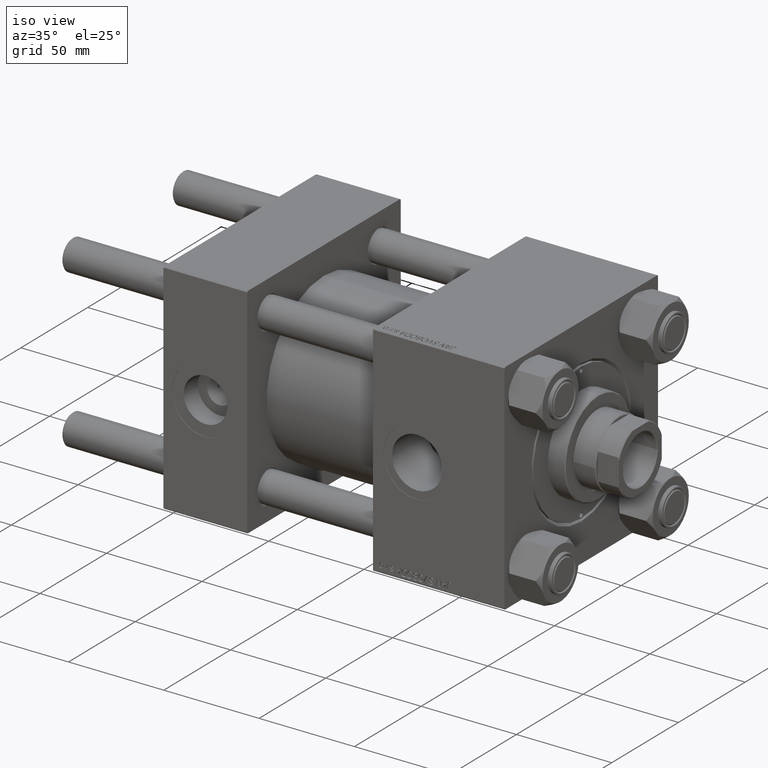
[diagram: clean part render]
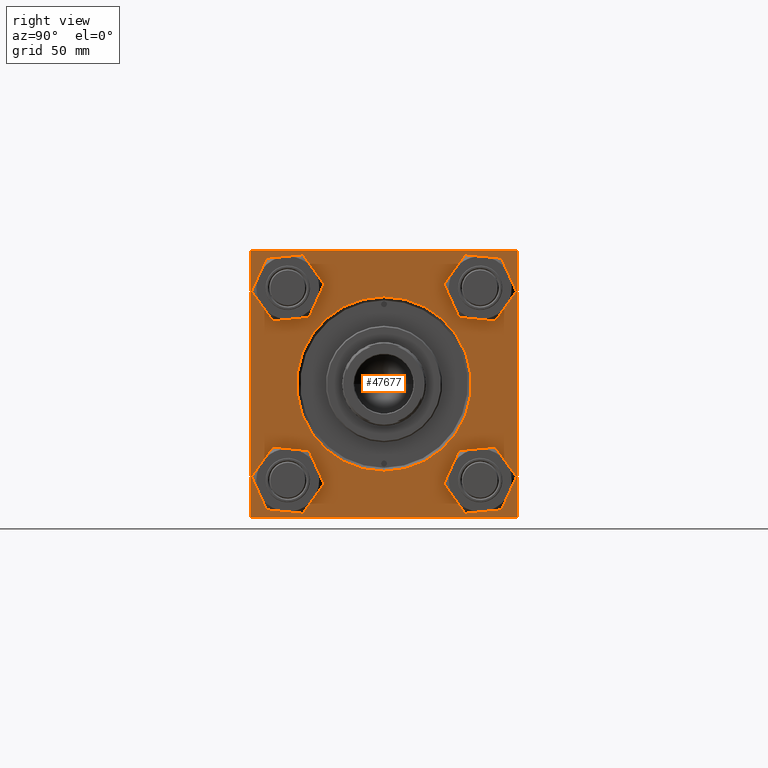
[diagram: tour spotlight — one face highlighted and labeled with its STEP entity id]
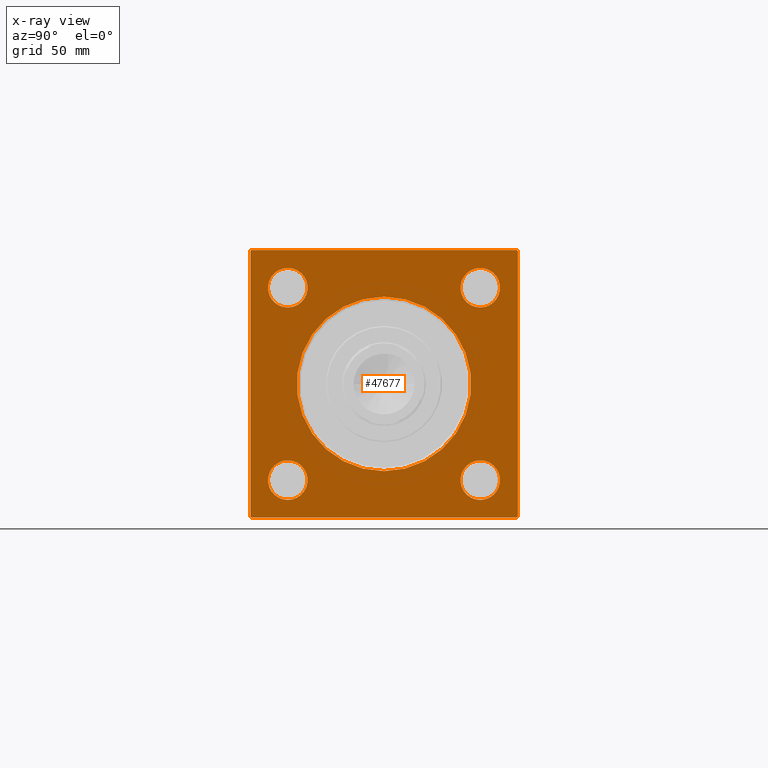
[diagram: x-ray of the same camera — body ghosted, this tour face saturated]
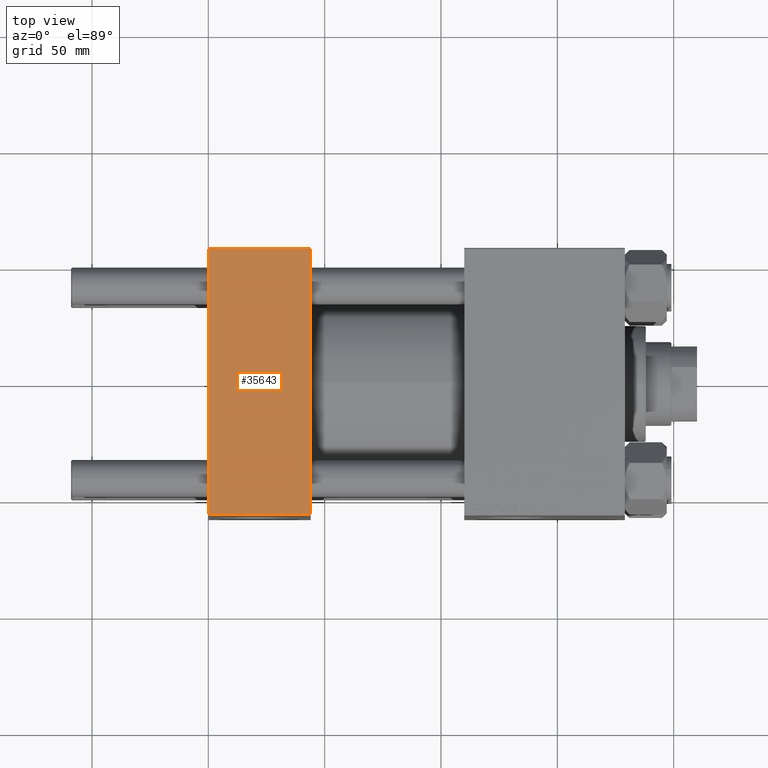
[diagram: tour spotlight — one face highlighted and labeled with its STEP entity id]
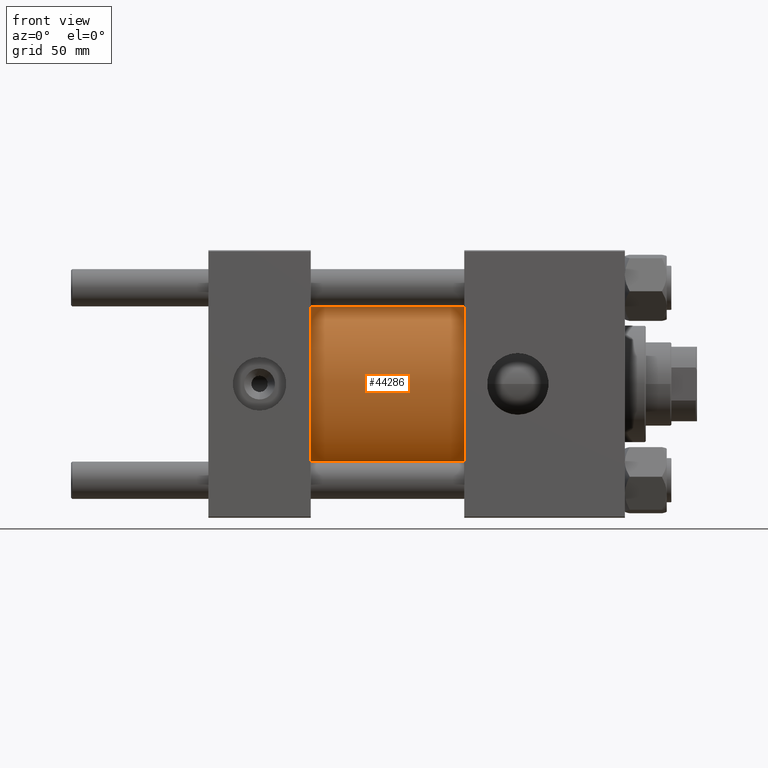
[diagram: tour spotlight — one face highlighted and labeled with its STEP entity id]
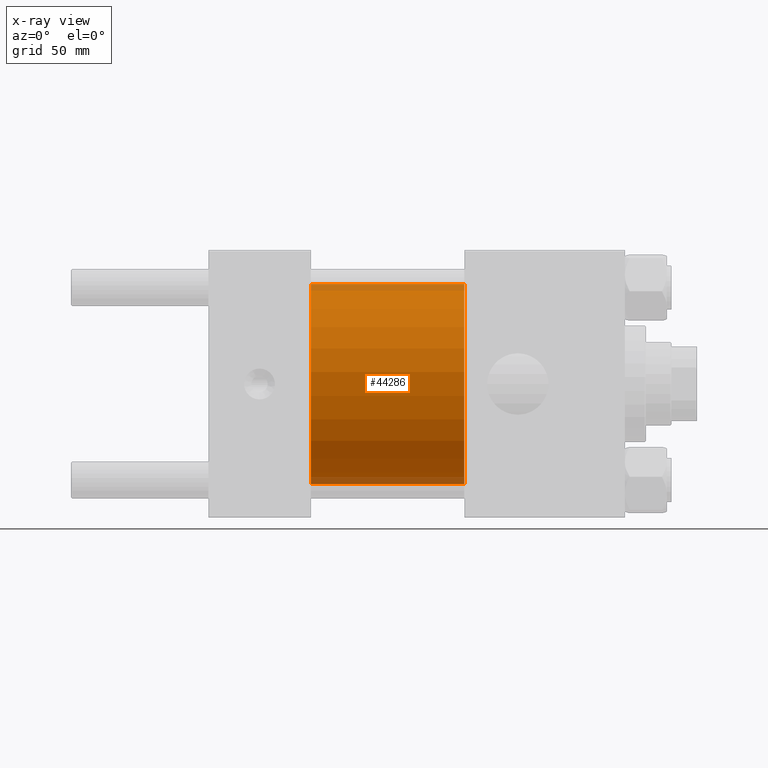
[diagram: x-ray of the same camera — body ghosted, this tour face saturated]
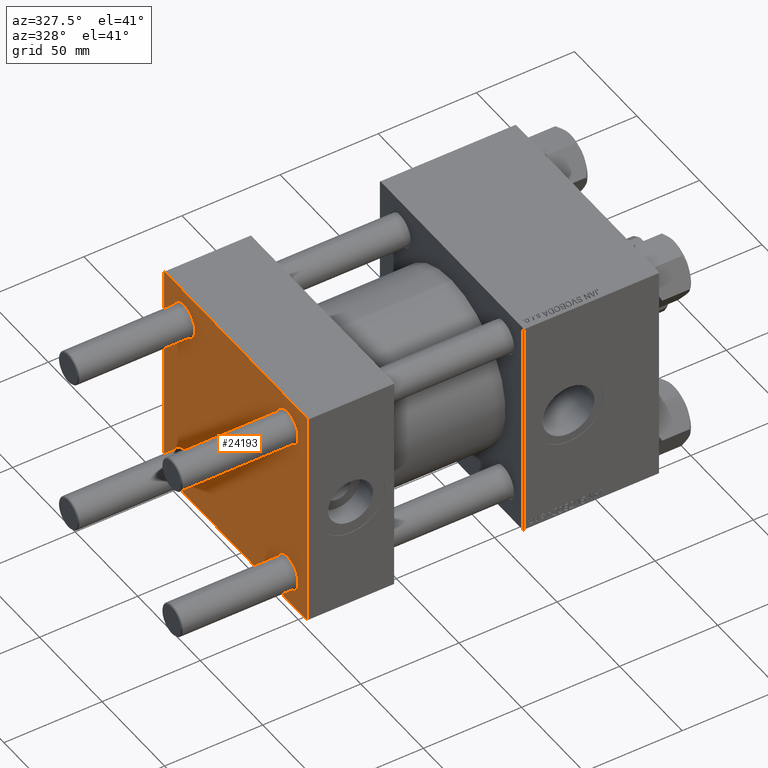
[diagram: tour spotlight — one face highlighted and labeled with its STEP entity id]
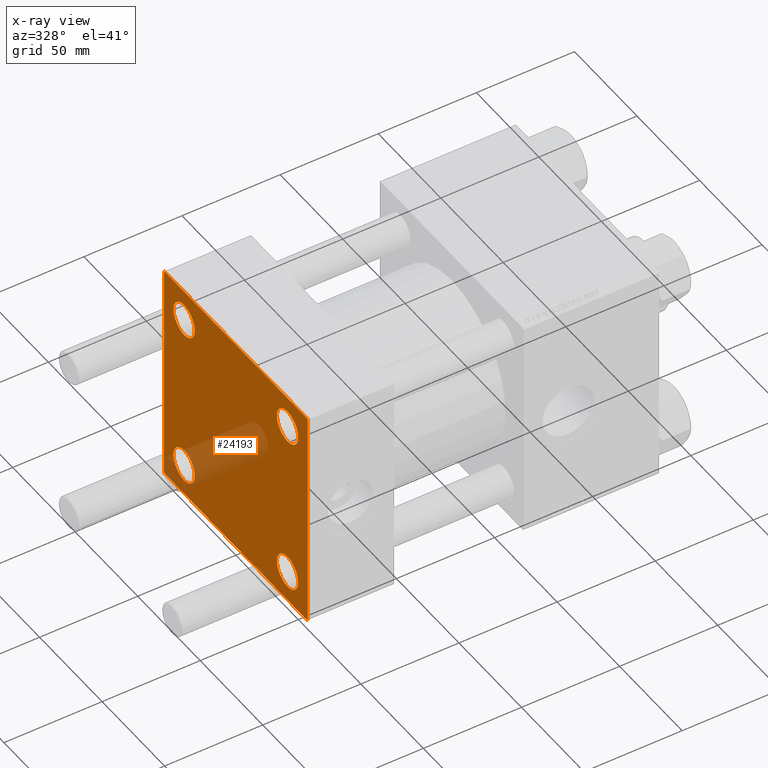
[diagram: x-ray of the same camera — body ghosted, this tour face saturated]
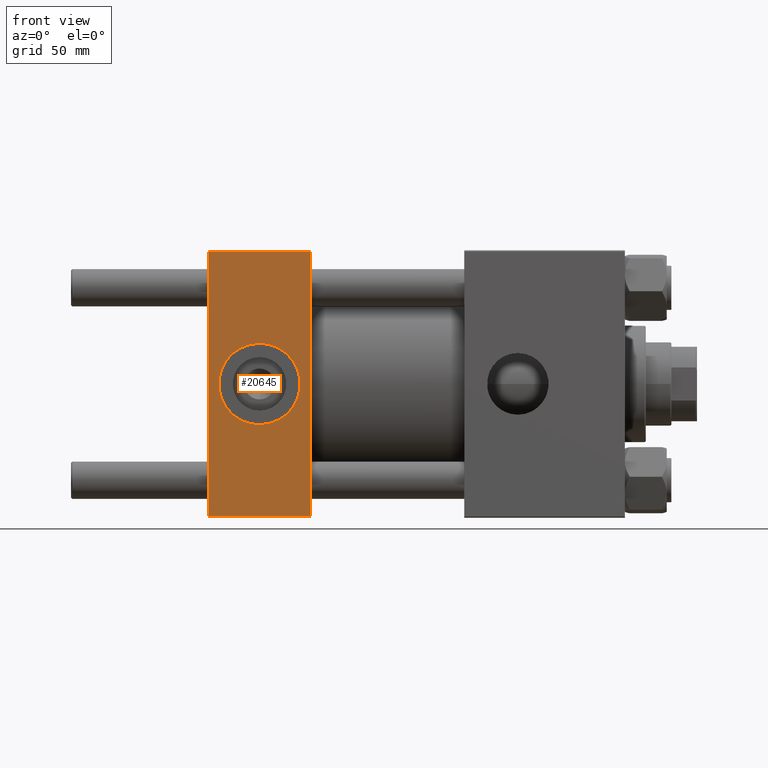
[diagram: tour spotlight — one face highlighted and labeled with its STEP entity id]
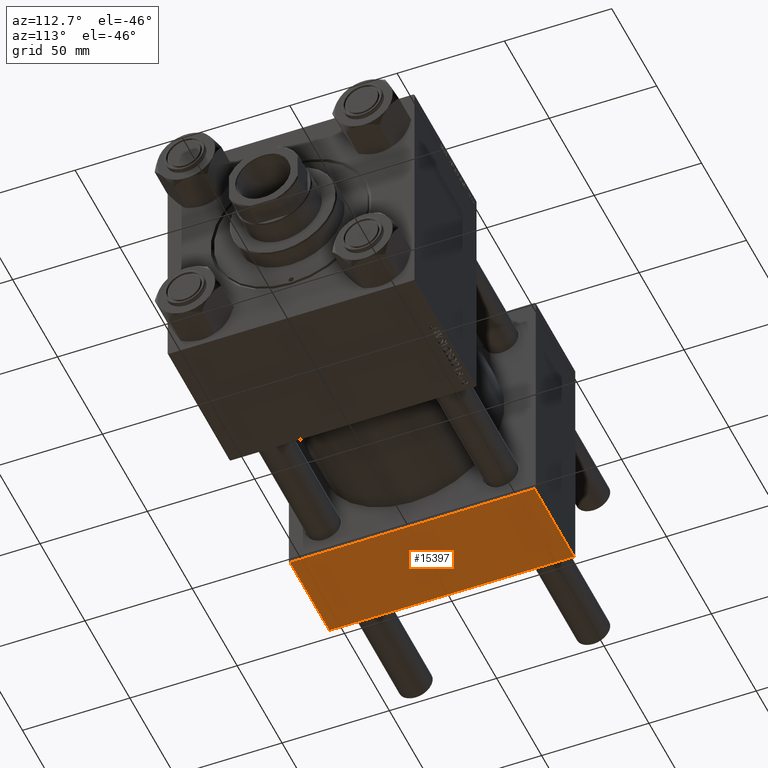
[diagram: tour spotlight — one face highlighted and labeled with its STEP entity id]
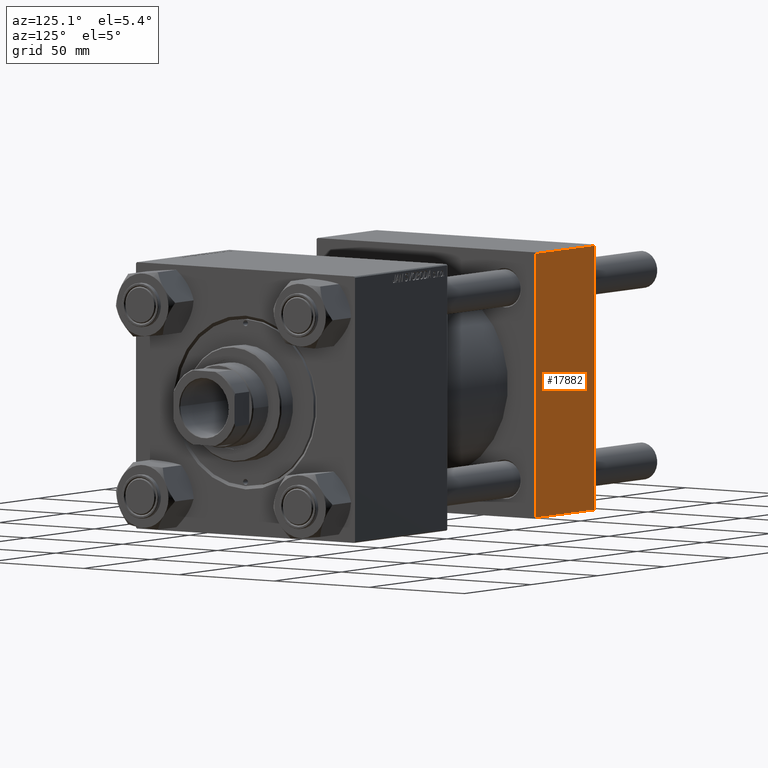
[diagram: tour spotlight — one face highlighted and labeled with its STEP entity id]
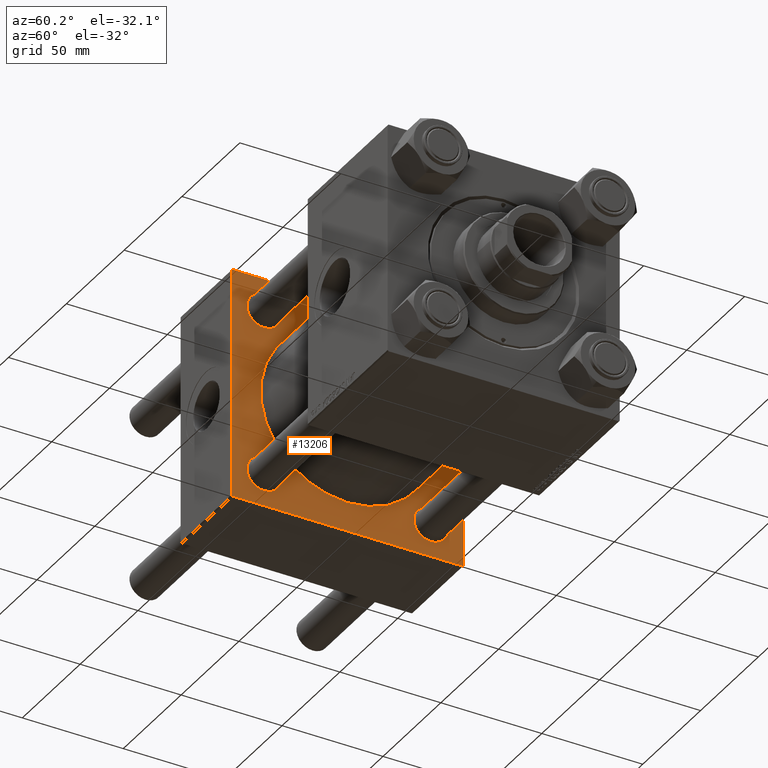
[diagram: tour spotlight — one face highlighted and labeled with its STEP entity id]
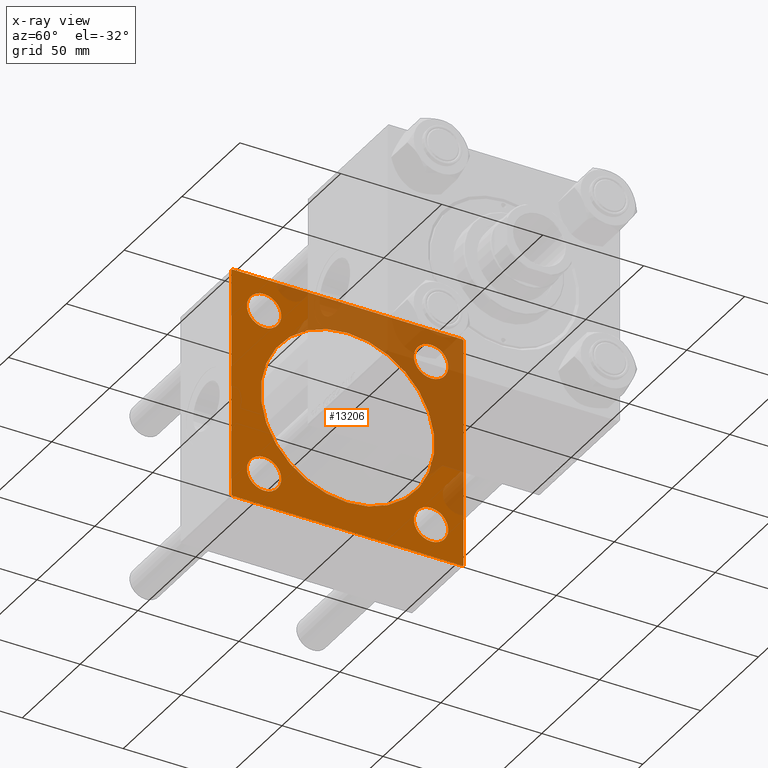
[diagram: x-ray of the same camera — body ghosted, this tour face saturated]
A machine part: a face-by-face anatomy tour. The part has 1187 B-rep faces; the first image is the clean iso view, then the 8 largest visible faces are spotlighted one at a time (largest first), each with its STEP entity span.

Face 1 — right view, entity #47677. An x-ray twin of the same camera follows (body ghosted, this face saturated) — the face is partly hidden behind the body. In plain terms, the highlighted planar face has unit normal (-1, 0, 0).
Definition (entity closure, byte-faithful):
#81 = DIRECTION ( 'NONE',  ( 0.000000000000000000, -0.7071067811865672237, 0.7071067811865279218 ) ) ;
#602 = DIRECTION ( 'NONE',  ( -1.000000000000000000, 0.000000000000000000, -0.000000000000000000 ) ) ;
#1007 = EDGE_LOOP ( 'NONE', ( #14434, #34533 ) ) ;
#1035 = CARTESIAN_POINT ( 'NONE',  ( 179.0000000000000000, -41.34999999999998721, 41.35000000000000853 ) ) ;
#1563 = CARTESIAN_POINT ( 'NONE',  ( 179.0000000000000000, 0.000000000000000000, 0.000000000000000000 ) ) ;
#1786 = DIRECTION ( 'NONE',  ( -1.000000000000000000, 0.000000000000000000, -0.000000000000000000 ) ) ;
#1808 = FACE_OUTER_BOUND ( 'NONE', #31960, .T. ) ;
#1878 = DIRECTION ( 'NONE',  ( 0.000000000000000000, 0.000000000000000000, 1.000000000000000000 ) ) ;
#2021 = CARTESIAN_POINT ( 'NONE',  ( 179.0000000000000000, -41.34999999999998721, 49.85000000000002274 ) ) ;
#2104 = EDGE_CURVE ( 'NONE', #35702, #26022, #45772, .T. ) ;
#2325 = AXIS2_PLACEMENT_3D ( 'NONE', #14914, #11093, #42477 ) ;
#2730 = CARTESIAN_POINT ( 'NONE',  ( 179.0000000000000000, 57.50000000000000000, 57.00000000000000711 ) ) ;
#2836 = AXIS2_PLACEMENT_3D ( 'NONE', #3496, #38216, #49937 ) ;
#3021 = CARTESIAN_POINT ( 'NONE',  ( 179.0000000000000000, 57.50000000000000000, -57.49999999999996447 ) ) ;
#3060 = VECTOR ( 'NONE', #27568, 1000.000000000000000 ) ;
#3217 = DIRECTION ( 'NONE',  ( 0.000000000000000000, 0.000000000000000000, 1.000000000000000000 ) ) ;
#3496 = CARTESIAN_POINT ( 'NONE',  ( 179.0000000000000000, 41.34999999999999432, 41.35000000000000142 ) ) ;
#4066 = EDGE_CURVE ( 'NONE', #4830, #48678, #19219, .T. ) ;
#4323 = DIRECTION ( 'NONE',  ( 0.000000000000000000, 0.000000000000000000, -1.000000000000000000 ) ) ;
#4830 = VERTEX_POINT ( 'NONE', #2730 ) ;
#4921 = EDGE_CURVE ( 'NONE', #27586, #45674, #22879, .T. ) ;
#5096 = CARTESIAN_POINT ( 'NONE',  ( 179.0000000000000000, -56.99999999999995737, -57.49999999999997868 ) ) ;
#5502 = VERTEX_POINT ( 'NONE', #36935 ) ;
#5595 = VECTOR ( 'NONE', #7891, 1000.000000000000000 ) ;
#5713 = DIRECTION ( 'NONE',  ( -1.000000000000000000, 0.000000000000000000, -0.000000000000000000 ) ) ;
#5811 = AXIS2_PLACEMENT_3D ( 'NONE', #6339, #36458, #33128 ) ;
#6339 = CARTESIAN_POINT ( 'NONE',  ( 179.0000000000000000, 41.34999999999999432, -41.35000000000000142 ) ) ;
#6710 = ORIENTED_EDGE ( 'NONE', *, *, #50205, .T. ) ;
#7666 = CARTESIAN_POINT ( 'NONE',  ( 179.0000000000000000, -41.34999999999998721, -32.85000000000000142 ) ) ;
#7743 = CARTESIAN_POINT ( 'NONE',  ( 179.0000000000000000, 56.99999999999997158, 57.50000000000000711 ) ) ;
#7891 = DIRECTION ( 'NONE',  ( 0.000000000000000000, 0.000000000000000000, -1.000000000000000000 ) ) ;
#8012 = CARTESIAN_POINT ( 'NONE',  ( 179.0000000000000000, 0.000000000000000000, 0.000000000000000000 ) ) ;
#9296 = EDGE_CURVE ( 'NONE', #16911, #17339, #33821, .T. ) ;
#9534 = VECTOR ( 'NONE', #36845, 1000.000000000000000 ) ;
#10645 = CIRCLE ( 'NONE', #32752, 37.50000000000000711 ) ;
#10765 = VERTEX_POINT ( 'NONE', #30311 ) ;
#11093 = DIRECTION ( 'NONE',  ( -1.000000000000000000, 0.000000000000000000, -0.000000000000000000 ) ) ;
#11192 = CARTESIAN_POINT ( 'NONE',  ( 179.0000000000000000, 41.34999999999999432, -49.85000000000001563 ) ) ;
#11952 = ORIENTED_EDGE ( 'NONE', *, *, #48025, .T. ) ;
#12044 = CARTESIAN_POINT ( 'NONE',  ( 179.0000000000000000, 41.34999999999999432, -32.84999999999999432 ) ) ;
#12537 = VERTEX_POINT ( 'NONE', #49217 ) ;
#12634 = EDGE_CURVE ( 'NONE', #27586, #32414, #30808, .T. ) ;
#13098 = CARTESIAN_POINT ( 'NONE',  ( 179.0000000000000000, -56.99999999999998579, 57.49999999999999289 ) ) ;
#13808 = EDGE_CURVE ( 'NONE', #10765, #47121, #46838, .T. ) ;
#13813 = ORIENTED_EDGE ( 'NONE', *, *, #19425, .T. ) ;
#13950 = ORIENTED_EDGE ( 'NONE', *, *, #12634, .F. ) ;
#14434 = ORIENTED_EDGE ( 'NONE', *, *, #13808, .T. ) ;
#14532 = CARTESIAN_POINT ( 'NONE',  ( 179.0000000000000000, -41.34999999999998721, 32.85000000000000142 ) ) ;
#14914 = CARTESIAN_POINT ( 'NONE',  ( 179.0000000000000000, -41.34999999999998721, -41.35000000000000853 ) ) ;
#15323 = ORIENTED_EDGE ( 'NONE', *, *, #36031, .T. ) ;
#15729 = CIRCLE ( 'NONE', #44255, 8.500000000000007105 ) ;
#16911 = VERTEX_POINT ( 'NONE', #7666 ) ;
#17339 = VERTEX_POINT ( 'NONE', #45285 ) ;
#17493 = VERTEX_POINT ( 'NONE', #39621 ) ;
#17656 = ORIENTED_EDGE ( 'NONE', *, *, #4921, .T. ) ;
#17814 = ORIENTED_EDGE ( 'NONE', *, *, #24965, .T. ) ;
#17877 = FACE_BOUND ( 'NONE', #46447, .T. ) ;
#17892 = DIRECTION ( 'NONE',  ( -1.000000000000000000, 0.000000000000000000, -0.000000000000000000 ) ) ;
#19143 = AXIS2_PLACEMENT_3D ( 'NONE', #46581, #50156, #3217 ) ;
#19219 = LINE ( 'NONE', #7743, #34425 ) ;
#19425 = EDGE_CURVE ( 'NONE', #23781, #43067, #45281, .T. ) ;
#19590 = ORIENTED_EDGE ( 'NONE', *, *, #4066, .T. ) ;
#19871 = LINE ( 'NONE', #43612, #5595 ) ;
#20172 = LINE ( 'NONE', #5096, #3060 ) ;
#20196 = DIRECTION ( 'NONE',  ( -1.000000000000000000, 0.000000000000000000, -0.000000000000000000 ) ) ;
#20488 = EDGE_LOOP ( 'NONE', ( #15323, #6710 ) ) ;
#20727 = EDGE_CURVE ( 'NONE', #17493, #32414, #20172, .T. ) ;
#20964 = FACE_BOUND ( 'NONE', #20488, .T. ) ;
#21213 = DIRECTION ( 'NONE',  ( -1.000000000000000000, 0.000000000000000000, -0.000000000000000000 ) ) ;
#21292 = CIRCLE ( 'NONE', #5811, 8.500000000000007105 ) ;
#21851 = VERTEX_POINT ( 'NONE', #11192 ) ;
#22236 = CARTESIAN_POINT ( 'NONE',  ( 179.0000000000000000, -56.99999999999995737, -57.49999999999997868 ) ) ;
#22295 = CARTESIAN_POINT ( 'NONE',  ( 179.0000000000000000, 57.50000000000000000, -56.99999999999994316 ) ) ;
#22831 = EDGE_CURVE ( 'NONE', #23872, #21851, #24339, .T. ) ;
#22879 = LINE ( 'NONE', #31529, #45072 ) ;
#23011 = DIRECTION ( 'NONE',  ( 0.000000000000000000, 0.000000000000000000, 1.000000000000000000 ) ) ;
#23781 = VERTEX_POINT ( 'NONE', #13098 ) ;
#23872 = VERTEX_POINT ( 'NONE', #12044 ) ;
#24288 = EDGE_LOOP ( 'NONE', ( #40506, #17814 ) ) ;
#24339 = CIRCLE ( 'NONE', #40613, 8.500000000000007105 ) ;
#24444 = CARTESIAN_POINT ( 'NONE',  ( 179.0000000000000000, 57.50000000000000000, 57.50000000000000711 ) ) ;
#24769 = DIRECTION ( 'NONE',  ( 0.000000000000000000, 0.000000000000000000, 1.000000000000000000 ) ) ;
#24771 = CARTESIAN_POINT ( 'NONE',  ( 179.0000000000000000, 0.000000000000000000, 0.000000000000000000 ) ) ;
#24965 = EDGE_CURVE ( 'NONE', #26022, #35702, #15729, .T. ) ;
#25209 = ORIENTED_EDGE ( 'NONE', *, *, #20727, .T. ) ;
#25290 = DIRECTION ( 'NONE',  ( -0.000000000000000000, 0.000000000000000000, 1.000000000000000000 ) ) ;
#25456 = ORIENTED_EDGE ( 'NONE', *, *, #22831, .T. ) ;
#25457 = CARTESIAN_POINT ( 'NONE',  ( 179.0000000000000000, 56.99999999999997158, 57.50000000000000711 ) ) ;
#26022 = VERTEX_POINT ( 'NONE', #2021 ) ;
#26738 = DIRECTION ( 'NONE',  ( 0.000000000000000000, -1.000000000000000000, -1.206764157201257291E-16 ) ) ;
#27558 = CIRCLE ( 'NONE', #2325, 8.500000000000007105 ) ;
#27568 = DIRECTION ( 'NONE',  ( 0.000000000000000000, 0.7071067811865721087, -0.7071067811865230368 ) ) ;
#27586 = VERTEX_POINT ( 'NONE', #29672 ) ;
#28112 = EDGE_LOOP ( 'NONE', ( #43516, #32621 ) ) ;
#28257 = EDGE_CURVE ( 'NONE', #47121, #10765, #44409, .T. ) ;
#28887 = AXIS2_PLACEMENT_3D ( 'NONE', #44507, #5713, #1878 ) ;
#29203 = CARTESIAN_POINT ( 'NONE',  ( 179.0000000000000000, -57.49999999999999289, 56.99999999999996447 ) ) ;
#29672 = CARTESIAN_POINT ( 'NONE',  ( 179.0000000000000000, 57.00000000000000000, -57.49999999999996447 ) ) ;
#29991 = CARTESIAN_POINT ( 'NONE',  ( 179.0000000000000000, 41.34999999999999432, 49.85000000000001563 ) ) ;
#30311 = CARTESIAN_POINT ( 'NONE',  ( 179.0000000000000000, 41.34999999999999432, 32.84999999999999432 ) ) ;
#30714 = DIRECTION ( 'NONE',  ( 0.000000000000000000, 0.000000000000000000, 1.000000000000000000 ) ) ;
#30808 = LINE ( 'NONE', #3021, #33778 ) ;
#30859 = CARTESIAN_POINT ( 'NONE',  ( 179.0000000000000000, -57.49999999999999289, 57.49999999999999289 ) ) ;
#31529 = CARTESIAN_POINT ( 'NONE',  ( 179.0000000000000000, 57.50000000000000000, -56.99999999999994316 ) ) ;
#31960 = EDGE_LOOP ( 'NONE', ( #34941, #25209, #13950, #17656, #41565, #19590, #43459, #13813 ) ) ;
#32340 = LINE ( 'NONE', #24444, #46212 ) ;
#32414 = VERTEX_POINT ( 'NONE', #22236 ) ;
#32450 = CARTESIAN_POINT ( 'NONE',  ( 179.0000000000000000, -41.34999999999998721, 41.35000000000000853 ) ) ;
#32621 = ORIENTED_EDGE ( 'NONE', *, *, #9296, .T. ) ;
#32752 = AXIS2_PLACEMENT_3D ( 'NONE', #24771, #1786, #36497 ) ;
#33128 = DIRECTION ( 'NONE',  ( 0.000000000000000000, 0.000000000000000000, 1.000000000000000000 ) ) ;
#33447 = FACE_BOUND ( 'NONE', #1007, .T. ) ;
#33778 = VECTOR ( 'NONE', #26738, 1000.000000000000000 ) ;
#33821 = CIRCLE ( 'NONE', #28887, 8.500000000000007105 ) ;
#34425 = VECTOR ( 'NONE', #81, 1000.000000000000000 ) ;
#34533 = ORIENTED_EDGE ( 'NONE', *, *, #28257, .T. ) ;
#34639 = EDGE_CURVE ( 'NONE', #48678, #23781, #32340, .T. ) ;
#34941 = ORIENTED_EDGE ( 'NONE', *, *, #45101, .T. ) ;
#35702 = VERTEX_POINT ( 'NONE', #14532 ) ;
#36031 = EDGE_CURVE ( 'NONE', #5502, #12537, #47017, .T. ) ;
#36458 = DIRECTION ( 'NONE',  ( -1.000000000000000000, 0.000000000000000000, -0.000000000000000000 ) ) ;
#36497 = DIRECTION ( 'NONE',  ( 0.000000000000000000, 0.000000000000000000, 1.000000000000000000 ) ) ;
#36845 = DIRECTION ( 'NONE',  ( -0.000000000000000000, -0.7071067811865328068, -0.7071067811865622277 ) ) ;
#36935 = CARTESIAN_POINT ( 'NONE',  ( 179.0000000000000000, 0.000000000000000000, -37.50000000000000711 ) ) ;
#38216 = DIRECTION ( 'NONE',  ( -1.000000000000000000, 0.000000000000000000, -0.000000000000000000 ) ) ;
#38435 = DIRECTION ( 'NONE',  ( -0.000000000000000000, 0.7071067811865279218, 0.7071067811865672237 ) ) ;
#39109 = VECTOR ( 'NONE', #4323, 1000.000000000000000 ) ;
#39583 = CARTESIAN_POINT ( 'NONE',  ( 179.0000000000000000, 41.34999999999999432, -41.35000000000000142 ) ) ;
#39621 = CARTESIAN_POINT ( 'NONE',  ( 179.0000000000000000, -57.49999999999999289, -56.99999999999997868 ) ) ;
#40250 = DIRECTION ( 'NONE',  ( 0.000000000000000000, -1.000000000000000000, -1.206764157201257291E-16 ) ) ;
#40349 = FACE_BOUND ( 'NONE', #28112, .T. ) ;
#40368 = EDGE_CURVE ( 'NONE', #17339, #16911, #27558, .T. ) ;
#40506 = ORIENTED_EDGE ( 'NONE', *, *, #2104, .T. ) ;
#40613 = AXIS2_PLACEMENT_3D ( 'NONE', #39583, #20196, #23011 ) ;
#40985 = EDGE_CURVE ( 'NONE', #4830, #45674, #19871, .T. ) ;
#41565 = ORIENTED_EDGE ( 'NONE', *, *, #40985, .F. ) ;
#42477 = DIRECTION ( 'NONE',  ( 0.000000000000000000, 0.000000000000000000, 1.000000000000000000 ) ) ;
#43067 = VERTEX_POINT ( 'NONE', #48846 ) ;
#43298 = AXIS2_PLACEMENT_3D ( 'NONE', #1563, #21213, #25290 ) ;
#43459 = ORIENTED_EDGE ( 'NONE', *, *, #34639, .T. ) ;
#43516 = ORIENTED_EDGE ( 'NONE', *, *, #40368, .T. ) ;
#43612 = CARTESIAN_POINT ( 'NONE',  ( 179.0000000000000000, 57.50000000000000000, 57.50000000000000711 ) ) ;
#44255 = AXIS2_PLACEMENT_3D ( 'NONE', #32450, #17892, #48022 ) ;
#44409 = CIRCLE ( 'NONE', #2836, 8.500000000000007105 ) ;
#44507 = CARTESIAN_POINT ( 'NONE',  ( 179.0000000000000000, -41.34999999999998721, -41.35000000000000853 ) ) ;
#44689 = FACE_BOUND ( 'NONE', #24288, .T. ) ;
#45072 = VECTOR ( 'NONE', #38435, 1000.000000000000000 ) ;
#45101 = EDGE_CURVE ( 'NONE', #43067, #17493, #46690, .T. ) ;
#45281 = LINE ( 'NONE', #29203, #9534 ) ;
#45285 = CARTESIAN_POINT ( 'NONE',  ( 179.0000000000000000, -41.34999999999998721, -49.85000000000002274 ) ) ;
#45674 = VERTEX_POINT ( 'NONE', #22295 ) ;
#45772 = CIRCLE ( 'NONE', #49010, 8.500000000000007105 ) ;
#46212 = VECTOR ( 'NONE', #40250, 1000.000000000000000 ) ;
#46447 = EDGE_LOOP ( 'NONE', ( #11952, #25456 ) ) ;
#46581 = CARTESIAN_POINT ( 'NONE',  ( 179.0000000000000000, 41.34999999999999432, 41.35000000000000142 ) ) ;
#46690 = LINE ( 'NONE', #30859, #39109 ) ;
#46838 = CIRCLE ( 'NONE', #19143, 8.500000000000007105 ) ;
#47017 = CIRCLE ( 'NONE', #50246, 37.50000000000000711 ) ;
#47121 = VERTEX_POINT ( 'NONE', #29991 ) ;
#47677 = ADVANCED_FACE ( 'NONE', ( #40349, #17877, #33447, #44689, #20964, #1808 ), #49017, .F. ) ;
#47987 = DIRECTION ( 'NONE',  ( -1.000000000000000000, 0.000000000000000000, -0.000000000000000000 ) ) ;
#48022 = DIRECTION ( 'NONE',  ( 0.000000000000000000, 0.000000000000000000, 1.000000000000000000 ) ) ;
#48025 = EDGE_CURVE ( 'NONE', #21851, #23872, #21292, .T. ) ;
#48678 = VERTEX_POINT ( 'NONE', #25457 ) ;
#48846 = CARTESIAN_POINT ( 'NONE',  ( 179.0000000000000000, -57.49999999999999289, 56.99999999999996447 ) ) ;
#49010 = AXIS2_PLACEMENT_3D ( 'NONE', #1035, #47987, #24769 ) ;
#49017 = PLANE ( 'NONE',  #43298 ) ;
#49217 = CARTESIAN_POINT ( 'NONE',  ( 179.0000000000000000, 4.592425496802575156E-15, 37.50000000000000711 ) ) ;
#49937 = DIRECTION ( 'NONE',  ( 0.000000000000000000, 0.000000000000000000, 1.000000000000000000 ) ) ;
#50156 = DIRECTION ( 'NONE',  ( -1.000000000000000000, 0.000000000000000000, -0.000000000000000000 ) ) ;
#50205 = EDGE_CURVE ( 'NONE', #12537, #5502, #10645, .T. ) ;
#50246 = AXIS2_PLACEMENT_3D ( 'NONE', #8012, #602, #30714 ) ;

Face 2 — top view, entity #35643. In plain terms, the highlighted planar face has unit normal (0, 0, -1).
Definition (entity closure, byte-faithful):
#3049 = DIRECTION ( 'NONE',  ( 0.000000000000000000, 1.000000000000000000, 1.206764157201257045E-16 ) ) ;
#4086 = CARTESIAN_POINT ( 'NONE',  ( 0.000000000000000000, 57.00000000000000711, 57.50000000000000711 ) ) ;
#4238 = ORIENTED_EDGE ( 'NONE', *, *, #28944, .T. ) ;
#4492 = DIRECTION ( 'NONE',  ( 0.000000000000000000, -1.000000000000000000, -1.206764157201257045E-16 ) ) ;
#5526 = AXIS2_PLACEMENT_3D ( 'NONE', #45914, #38010, #3049 ) ;
#7934 = ORIENTED_EDGE ( 'NONE', *, *, #50239, .F. ) ;
#8167 = CARTESIAN_POINT ( 'NONE',  ( 0.000000000000000000, -57.00000000000003553, 57.49999999999999289 ) ) ;
#8692 = LINE ( 'NONE', #29094, #39171 ) ;
#11820 = VECTOR ( 'NONE', #46451, 1000.000000000000000 ) ;
#14104 = CARTESIAN_POINT ( 'NONE',  ( 44.00000000000000000, 57.00000000000000711, 57.50000000000000711 ) ) ;
#16452 = ORIENTED_EDGE ( 'NONE', *, *, #41370, .T. ) ;
#16742 = LINE ( 'NONE', #33059, #20245 ) ;
#16821 = VERTEX_POINT ( 'NONE', #8167 ) ;
#20127 = CARTESIAN_POINT ( 'NONE',  ( 0.000000000000000000, 57.00000000000000711, 57.50000000000000711 ) ) ;
#20245 = VECTOR ( 'NONE', #48634, 1000.000000000000000 ) ;
#22095 = ORIENTED_EDGE ( 'NONE', *, *, #27225, .T. ) ;
#22205 = CARTESIAN_POINT ( 'NONE',  ( 0.000000000000000000, 57.49999999999999289, 57.50000000000000711 ) ) ;
#22661 = VERTEX_POINT ( 'NONE', #41157 ) ;
#27211 = LINE ( 'NONE', #22205, #41898 ) ;
#27225 = EDGE_CURVE ( 'NONE', #43281, #16821, #27211, .T. ) ;
#28944 = EDGE_CURVE ( 'NONE', #47297, #43281, #45532, .T. ) ;
#29094 = CARTESIAN_POINT ( 'NONE',  ( 44.00000000000000000, 57.49999999999999289, 57.50000000000000711 ) ) ;
#30344 = FACE_OUTER_BOUND ( 'NONE', #31124, .T. ) ;
#31124 = EDGE_LOOP ( 'NONE', ( #22095, #16452, #7934, #4238 ) ) ;
#33059 = CARTESIAN_POINT ( 'NONE',  ( 44.00000000000000000, -57.00000000000003553, 57.49999999999999289 ) ) ;
#35643 = ADVANCED_FACE ( 'NONE', ( #30344 ), #46163, .F. ) ;
#38010 = DIRECTION ( 'NONE',  ( 0.000000000000000000, 1.206764157201257045E-16, -1.000000000000000000 ) ) ;
#39171 = VECTOR ( 'NONE', #44166, 1000.000000000000000 ) ;
#41157 = CARTESIAN_POINT ( 'NONE',  ( 44.00000000000000000, -57.00000000000003553, 57.49999999999999289 ) ) ;
#41370 = EDGE_CURVE ( 'NONE', #16821, #22661, #16742, .T. ) ;
#41898 = VECTOR ( 'NONE', #4492, 1000.000000000000000 ) ;
#43281 = VERTEX_POINT ( 'NONE', #20127 ) ;
#44166 = DIRECTION ( 'NONE',  ( 0.000000000000000000, -1.000000000000000000, -1.206764157201257045E-16 ) ) ;
#45532 = LINE ( 'NONE', #4086, #11820 ) ;
#45914 = CARTESIAN_POINT ( 'NONE',  ( 44.00000000000000000, 57.49999999999999289, 57.50000000000000711 ) ) ;
#46163 = PLANE ( 'NONE',  #5526 ) ;
#46451 = DIRECTION ( 'NONE',  ( -1.000000000000000000, 0.000000000000000000, 0.000000000000000000 ) ) ;
#47297 = VERTEX_POINT ( 'NONE', #14104 ) ;
#48634 = DIRECTION ( 'NONE',  ( 1.000000000000000000, 0.000000000000000000, 0.000000000000000000 ) ) ;
#50239 = EDGE_CURVE ( 'NONE', #47297, #22661, #8692, .T. ) ;

Face 3 — front view, entity #44286. An x-ray twin of the same camera follows (body ghosted, this face saturated) — the face is partly hidden behind the body. In plain terms, the highlighted cylindrical surface (partial cylindrical patch) has radius 43 mm, axis along (-1, -0, -0).
Definition (entity closure, byte-faithful):
#791 = AXIS2_PLACEMENT_3D ( 'NONE', #34441, #6896, #38027 ) ;
#2185 = DIRECTION ( 'NONE',  ( -1.000000000000000000, -0.000000000000000000, -0.000000000000000000 ) ) ;
#2637 = DIRECTION ( 'NONE',  ( -1.000000000000000000, -0.000000000000000000, -0.000000000000000000 ) ) ;
#6896 = DIRECTION ( 'NONE',  ( -1.000000000000000000, -0.000000000000000000, -0.000000000000000000 ) ) ;
#9910 = VERTEX_POINT ( 'NONE', #28046 ) ;
#10853 = CARTESIAN_POINT ( 'NONE',  ( 110.0000000000000000, 5.265981236333618470E-15, -43.00000000000000000 ) ) ;
#11222 = VERTEX_POINT ( 'NONE', #10853 ) ;
#11634 = ORIENTED_EDGE ( 'NONE', *, *, #46287, .T. ) ;
#14364 = ORIENTED_EDGE ( 'NONE', *, *, #46855, .F. ) ;
#18120 = DIRECTION ( 'NONE',  ( 1.000000000000000000, 0.000000000000000000, 0.000000000000000000 ) ) ;
#19488 = CARTESIAN_POINT ( 'NONE',  ( 44.00000000000000000, 0.000000000000000000, 0.000000000000000000 ) ) ;
#22070 = CIRCLE ( 'NONE', #43259, 43.00000000000000000 ) ;
#22420 = EDGE_LOOP ( 'NONE', ( #25710, #14364, #41558, #11634 ) ) ;
#23656 = DIRECTION ( 'NONE',  ( 0.000000000000000000, 0.000000000000000000, -1.000000000000000000 ) ) ;
#23844 = EDGE_CURVE ( 'NONE', #11222, #9910, #38341, .T. ) ;
#24833 = CARTESIAN_POINT ( 'NONE',  ( 110.0000000000000000, 0.000000000000000000, 43.00000000000000000 ) ) ;
#25710 = ORIENTED_EDGE ( 'NONE', *, *, #23844, .F. ) ;
#26111 = AXIS2_PLACEMENT_3D ( 'NONE', #19488, #38629, #35058 ) ;
#27658 = CARTESIAN_POINT ( 'NONE',  ( 44.00000000000000000, 0.000000000000000000, 43.00000000000000000 ) ) ;
#28046 = CARTESIAN_POINT ( 'NONE',  ( 44.00000000000000000, 5.265981236333618470E-15, -43.00000000000000000 ) ) ;
#30741 = VERTEX_POINT ( 'NONE', #24833 ) ;
#31520 = VECTOR ( 'NONE', #2185, 1000.000000000000000 ) ;
#31548 = CARTESIAN_POINT ( 'NONE',  ( 110.0000000000000000, 0.000000000000000000, 0.000000000000000000 ) ) ;
#34441 = CARTESIAN_POINT ( 'NONE',  ( 110.0000000000000000, 0.000000000000000000, 0.000000000000000000 ) ) ;
#35058 = DIRECTION ( 'NONE',  ( 0.000000000000000000, 0.000000000000000000, 1.000000000000000000 ) ) ;
#37262 = EDGE_CURVE ( 'NONE', #30741, #39627, #48119, .T. ) ;
#37597 = CARTESIAN_POINT ( 'NONE',  ( 110.0000000000000000, 5.265981236333618470E-15, -43.00000000000000000 ) ) ;
#38027 = DIRECTION ( 'NONE',  ( 0.000000000000000000, 0.000000000000000000, 1.000000000000000000 ) ) ;
#38274 = CYLINDRICAL_SURFACE ( 'NONE', #791, 43.00000000000000000 ) ;
#38341 = LINE ( 'NONE', #37597, #42812 ) ;
#38629 = DIRECTION ( 'NONE',  ( 1.000000000000000000, -0.000000000000000000, 0.000000000000000000 ) ) ;
#39627 = VERTEX_POINT ( 'NONE', #27658 ) ;
#39723 = FACE_OUTER_BOUND ( 'NONE', #22420, .T. ) ;
#39940 = CIRCLE ( 'NONE', #26111, 43.00000000000000000 ) ;
#41558 = ORIENTED_EDGE ( 'NONE', *, *, #37262, .T. ) ;
#42812 = VECTOR ( 'NONE', #2637, 1000.000000000000000 ) ;
#43259 = AXIS2_PLACEMENT_3D ( 'NONE', #31548, #18120, #23656 ) ;
#44286 = ADVANCED_FACE ( 'NONE', ( #39723 ), #38274, .T. ) ;
#46287 = EDGE_CURVE ( 'NONE', #39627, #9910, #39940, .T. ) ;
#46855 = EDGE_CURVE ( 'NONE', #30741, #11222, #22070, .T. ) ;
#48119 = LINE ( 'NONE', #48373, #31520 ) ;
#48373 = CARTESIAN_POINT ( 'NONE',  ( 110.0000000000000000, 0.000000000000000000, 43.00000000000000000 ) ) ;

Face 4 — auxiliary view, entity #24193. An x-ray twin of the same camera follows (body ghosted, this face saturated) — the face is partly hidden behind the body. In plain terms, the highlighted planar face has unit normal (-1, 0, 0).
Definition (entity closure, byte-faithful):
#824 = CARTESIAN_POINT ( 'NONE',  ( 0.000000000000000000, -41.34999999999998721, -32.85000000000001563 ) ) ;
#1733 = LINE ( 'NONE', #39584, #31103 ) ;
#1776 = ORIENTED_EDGE ( 'NONE', *, *, #6097, .T. ) ;
#3184 = CARTESIAN_POINT ( 'NONE',  ( 0.000000000000000000, -57.50000000000000711, 57.00000000000000711 ) ) ;
#3251 = EDGE_CURVE ( 'NONE', #8926, #44017, #1733, .T. ) ;
#3503 = LINE ( 'NONE', #27481, #8978 ) ;
#3529 = VECTOR ( 'NONE', #35063, 1000.000000000000114 ) ;
#3571 = CARTESIAN_POINT ( 'NONE',  ( 0.000000000000000000, 0.000000000000000000, 0.000000000000000000 ) ) ;
#3837 = VERTEX_POINT ( 'NONE', #3184 ) ;
#3932 = CARTESIAN_POINT ( 'NONE',  ( 0.000000000000000000, 57.49999999999999289, 57.50000000000000711 ) ) ;
#4266 = DIRECTION ( 'NONE',  ( 0.000000000000000000, 0.000000000000000000, 1.000000000000000000 ) ) ;
#4366 = DIRECTION ( 'NONE',  ( 0.000000000000000000, -1.000000000000000000, -1.206764157201257045E-16 ) ) ;
#4492 = DIRECTION ( 'NONE',  ( 0.000000000000000000, -1.000000000000000000, -1.206764157201257045E-16 ) ) ;
#4625 = AXIS2_PLACEMENT_3D ( 'NONE', #38655, #34579, #18998 ) ;
#4717 = AXIS2_PLACEMENT_3D ( 'NONE', #27788, #40272, #20887 ) ;
#5403 = EDGE_CURVE ( 'NONE', #49229, #47188, #24668, .T. ) ;
#6097 = EDGE_CURVE ( 'NONE', #33396, #8926, #38888, .T. ) ;
#6297 = CIRCLE ( 'NONE', #25869, 8.499999999999992895 ) ;
#7164 = AXIS2_PLACEMENT_3D ( 'NONE', #19225, #50107, #47037 ) ;
#7379 = CARTESIAN_POINT ( 'NONE',  ( 0.000000000000000000, -41.34999999999998721, 41.35000000000000853 ) ) ;
#7875 = EDGE_CURVE ( 'NONE', #44017, #27239, #25987, .T. ) ;
#8109 = CARTESIAN_POINT ( 'NONE',  ( 0.000000000000000000, -41.34999999999998721, -49.85000000000000853 ) ) ;
#8167 = CARTESIAN_POINT ( 'NONE',  ( 0.000000000000000000, -57.00000000000003553, 57.49999999999999289 ) ) ;
#8424 = ORIENTED_EDGE ( 'NONE', *, *, #18478, .T. ) ;
#8926 = VERTEX_POINT ( 'NONE', #23419 ) ;
#8978 = VECTOR ( 'NONE', #26978, 1000.000000000000114 ) ;
#9498 = CIRCLE ( 'NONE', #4625, 8.499999999999992895 ) ;
#9801 = CARTESIAN_POINT ( 'NONE',  ( 0.000000000000000000, 41.34999999999999432, 41.35000000000000142 ) ) ;
#10052 = DIRECTION ( 'NONE',  ( 1.000000000000000000, -0.000000000000000000, 0.000000000000000000 ) ) ;
#10500 = ORIENTED_EDGE ( 'NONE', *, *, #38975, .T. ) ;
#11048 = EDGE_CURVE ( 'NONE', #31190, #25394, #25692, .T. ) ;
#11199 = DIRECTION ( 'NONE',  ( 0.000000000000000000, 0.000000000000000000, 1.000000000000000000 ) ) ;
#11331 = DIRECTION ( 'NONE',  ( 0.000000000000000000, 0.000000000000000000, -1.000000000000000000 ) ) ;
#12960 = ORIENTED_EDGE ( 'NONE', *, *, #39998, .T. ) ;
#13286 = VERTEX_POINT ( 'NONE', #25875 ) ;
#14439 = DIRECTION ( 'NONE',  ( 1.000000000000000000, -0.000000000000000000, 0.000000000000000000 ) ) ;
#15298 = DIRECTION ( 'NONE',  ( -1.000000000000000000, 0.000000000000000000, -0.000000000000000000 ) ) ;
#16316 = FACE_BOUND ( 'NONE', #37220, .T. ) ;
#16794 = LINE ( 'NONE', #20881, #38133 ) ;
#16821 = VERTEX_POINT ( 'NONE', #8167 ) ;
#17408 = EDGE_LOOP ( 'NONE', ( #8424, #12960 ) ) ;
#18225 = EDGE_CURVE ( 'NONE', #36122, #13286, #21757, .T. ) ;
#18312 = ORIENTED_EDGE ( 'NONE', *, *, #45445, .T. ) ;
#18478 = EDGE_CURVE ( 'NONE', #32368, #48794, #9498, .T. ) ;
#18998 = DIRECTION ( 'NONE',  ( 0.000000000000000000, 0.000000000000000000, 1.000000000000000000 ) ) ;
#19225 = CARTESIAN_POINT ( 'NONE',  ( 0.000000000000000000, 41.34999999999999432, -41.35000000000000142 ) ) ;
#19495 = CARTESIAN_POINT ( 'NONE',  ( 0.000000000000000000, 57.25000000000081712, -57.24999999999922551 ) ) ;
#19553 = EDGE_CURVE ( 'NONE', #13286, #36122, #6297, .T. ) ;
#19663 = EDGE_LOOP ( 'NONE', ( #34252, #43211 ) ) ;
#19850 = VECTOR ( 'NONE', #38218, 1000.000000000000114 ) ;
#19861 = LINE ( 'NONE', #39514, #25098 ) ;
#20127 = CARTESIAN_POINT ( 'NONE',  ( 0.000000000000000000, 57.00000000000000711, 57.50000000000000711 ) ) ;
#20152 = FACE_BOUND ( 'NONE', #17408, .T. ) ;
#20220 = CIRCLE ( 'NONE', #40456, 8.499999999999992895 ) ;
#20881 = CARTESIAN_POINT ( 'NONE',  ( 0.000000000000000000, 57.24999999999922551, 57.25000000000081712 ) ) ;
#20887 = DIRECTION ( 'NONE',  ( 0.000000000000000000, 0.000000000000000000, 1.000000000000000000 ) ) ;
#21757 = CIRCLE ( 'NONE', #50258, 8.499999999999992895 ) ;
#22205 = CARTESIAN_POINT ( 'NONE',  ( 0.000000000000000000, 57.49999999999999289, 57.50000000000000711 ) ) ;
#22500 = ORIENTED_EDGE ( 'NONE', *, *, #27497, .T. ) ;
#22654 = CIRCLE ( 'NONE', #4717, 8.499999999999992895 ) ;
#22672 = CARTESIAN_POINT ( 'NONE',  ( 0.000000000000000000, 41.34999999999999432, -32.85000000000000853 ) ) ;
#22975 = PLANE ( 'NONE',  #47529 ) ;
#23419 = CARTESIAN_POINT ( 'NONE',  ( 0.000000000000000000, 57.00000000000002132, -57.49999999999999289 ) ) ;
#23483 = DIRECTION ( 'NONE',  ( -0.000000000000000000, 0.000000000000000000, 1.000000000000000000 ) ) ;
#23784 = CARTESIAN_POINT ( 'NONE',  ( 0.000000000000000000, -57.00000000000000711, -57.50000000000000711 ) ) ;
#24085 = CARTESIAN_POINT ( 'NONE',  ( 0.000000000000000000, 41.34999999999999432, 49.85000000000000142 ) ) ;
#24193 = ADVANCED_FACE ( 'NONE', ( #34955, #20152, #35716, #16316, #43629 ), #22975, .T. ) ;
#24668 = CIRCLE ( 'NONE', #25506, 8.499999999999992895 ) ;
#24776 = CARTESIAN_POINT ( 'NONE',  ( 0.000000000000000000, 41.34999999999999432, -49.85000000000000142 ) ) ;
#25098 = VECTOR ( 'NONE', #39768, 1000.000000000000000 ) ;
#25305 = ORIENTED_EDGE ( 'NONE', *, *, #27225, .F. ) ;
#25394 = VERTEX_POINT ( 'NONE', #22672 ) ;
#25442 = VERTEX_POINT ( 'NONE', #33910 ) ;
#25506 = AXIS2_PLACEMENT_3D ( 'NONE', #39266, #47177, #38760 ) ;
#25627 = DIRECTION ( 'NONE',  ( 0.000000000000000000, 0.000000000000000000, 1.000000000000000000 ) ) ;
#25692 = CIRCLE ( 'NONE', #48493, 8.499999999999992895 ) ;
#25869 = AXIS2_PLACEMENT_3D ( 'NONE', #9801, #10052, #25627 ) ;
#25875 = CARTESIAN_POINT ( 'NONE',  ( 0.000000000000000000, 41.34999999999999432, 32.85000000000000853 ) ) ;
#25896 = CIRCLE ( 'NONE', #7164, 8.499999999999992895 ) ;
#25987 = LINE ( 'NONE', #41301, #19850 ) ;
#26978 = DIRECTION ( 'NONE',  ( -0.000000000000000000, 0.7071067811865376918, 0.7071067811865573427 ) ) ;
#27211 = LINE ( 'NONE', #22205, #41898 ) ;
#27225 = EDGE_CURVE ( 'NONE', #43281, #16821, #27211, .T. ) ;
#27237 = DIRECTION ( 'NONE',  ( 1.000000000000000000, -0.000000000000000000, 0.000000000000000000 ) ) ;
#27239 = VERTEX_POINT ( 'NONE', #44293 ) ;
#27481 = CARTESIAN_POINT ( 'NONE',  ( -0.000000000000000000, -57.25000000000081712, 57.24999999999922551 ) ) ;
#27497 = EDGE_CURVE ( 'NONE', #25442, #33396, #38885, .T. ) ;
#27780 = DIRECTION ( 'NONE',  ( 0.000000000000000000, 0.7071067811865573427, -0.7071067811865376918 ) ) ;
#27788 = CARTESIAN_POINT ( 'NONE',  ( 0.000000000000000000, -41.34999999999998721, -41.35000000000000853 ) ) ;
#28440 = CARTESIAN_POINT ( 'NONE',  ( 0.000000000000000000, 57.49999999999999289, -57.00000000000000711 ) ) ;
#29665 = ORIENTED_EDGE ( 'NONE', *, *, #35644, .T. ) ;
#31103 = VECTOR ( 'NONE', #4366, 1000.000000000000000 ) ;
#31190 = VERTEX_POINT ( 'NONE', #24776 ) ;
#31225 = CARTESIAN_POINT ( 'NONE',  ( 0.000000000000000000, -41.34999999999998721, 32.85000000000001563 ) ) ;
#31433 = ORIENTED_EDGE ( 'NONE', *, *, #7875, .T. ) ;
#32365 = ORIENTED_EDGE ( 'NONE', *, *, #19553, .T. ) ;
#32368 = VERTEX_POINT ( 'NONE', #824 ) ;
#33396 = VERTEX_POINT ( 'NONE', #28440 ) ;
#33910 = CARTESIAN_POINT ( 'NONE',  ( 0.000000000000000000, 57.49999999999999289, 57.00000000000003553 ) ) ;
#34252 = ORIENTED_EDGE ( 'NONE', *, *, #35074, .T. ) ;
#34579 = DIRECTION ( 'NONE',  ( 1.000000000000000000, -0.000000000000000000, 0.000000000000000000 ) ) ;
#34955 = FACE_BOUND ( 'NONE', #37582, .T. ) ;
#35063 = DIRECTION ( 'NONE',  ( -0.000000000000000000, -0.7071067811865376918, -0.7071067811865573427 ) ) ;
#35074 = EDGE_CURVE ( 'NONE', #25394, #31190, #25896, .T. ) ;
#35644 = EDGE_CURVE ( 'NONE', #47188, #49229, #20220, .T. ) ;
#35716 = FACE_BOUND ( 'NONE', #19663, .T. ) ;
#35908 = EDGE_CURVE ( 'NONE', #3837, #27239, #19861, .T. ) ;
#36122 = VERTEX_POINT ( 'NONE', #24085 ) ;
#36246 = ORIENTED_EDGE ( 'NONE', *, *, #35908, .F. ) ;
#37220 = EDGE_LOOP ( 'NONE', ( #40064, #32365 ) ) ;
#37582 = EDGE_LOOP ( 'NONE', ( #46278, #29665 ) ) ;
#38133 = VECTOR ( 'NONE', #27780, 1000.000000000000114 ) ;
#38218 = DIRECTION ( 'NONE',  ( 0.000000000000000000, -0.7071067811865474617, 0.7071067811865474617 ) ) ;
#38655 = CARTESIAN_POINT ( 'NONE',  ( 0.000000000000000000, -41.34999999999998721, -41.35000000000000853 ) ) ;
#38706 = ORIENTED_EDGE ( 'NONE', *, *, #3251, .T. ) ;
#38760 = DIRECTION ( 'NONE',  ( 0.000000000000000000, 0.000000000000000000, 1.000000000000000000 ) ) ;
#38885 = LINE ( 'NONE', #3932, #43571 ) ;
#38888 = LINE ( 'NONE', #19495, #3529 ) ;
#38975 = EDGE_CURVE ( 'NONE', #43281, #25442, #16794, .T. ) ;
#39266 = CARTESIAN_POINT ( 'NONE',  ( 0.000000000000000000, -41.34999999999998721, 41.35000000000000853 ) ) ;
#39514 = CARTESIAN_POINT ( 'NONE',  ( 0.000000000000000000, -57.50000000000000711, 57.49999999999999289 ) ) ;
#39584 = CARTESIAN_POINT ( 'NONE',  ( 0.000000000000000000, 57.49999999999999289, -57.49999999999999289 ) ) ;
#39768 = DIRECTION ( 'NONE',  ( 0.000000000000000000, 0.000000000000000000, -1.000000000000000000 ) ) ;
#39998 = EDGE_CURVE ( 'NONE', #48794, #32368, #22654, .T. ) ;
#40064 = ORIENTED_EDGE ( 'NONE', *, *, #18225, .T. ) ;
#40272 = DIRECTION ( 'NONE',  ( 1.000000000000000000, -0.000000000000000000, 0.000000000000000000 ) ) ;
#40436 = CARTESIAN_POINT ( 'NONE',  ( 0.000000000000000000, -41.34999999999998721, 49.85000000000000853 ) ) ;
#40456 = AXIS2_PLACEMENT_3D ( 'NONE', #7379, #42844, #11199 ) ;
#41301 = CARTESIAN_POINT ( 'NONE',  ( 0.000000000000000000, -57.25000000000000711, -57.25000000000000711 ) ) ;
#41424 = EDGE_LOOP ( 'NONE', ( #22500, #1776, #38706, #31433, #36246, #18312, #25305, #10500 ) ) ;
#41898 = VECTOR ( 'NONE', #4492, 1000.000000000000000 ) ;
#42844 = DIRECTION ( 'NONE',  ( 1.000000000000000000, -0.000000000000000000, 0.000000000000000000 ) ) ;
#43065 = CARTESIAN_POINT ( 'NONE',  ( 0.000000000000000000, 41.34999999999999432, 41.35000000000000142 ) ) ;
#43211 = ORIENTED_EDGE ( 'NONE', *, *, #11048, .T. ) ;
#43281 = VERTEX_POINT ( 'NONE', #20127 ) ;
#43571 = VECTOR ( 'NONE', #11331, 1000.000000000000000 ) ;
#43629 = FACE_OUTER_BOUND ( 'NONE', #41424, .T. ) ;
#44017 = VERTEX_POINT ( 'NONE', #23784 ) ;
#44293 = CARTESIAN_POINT ( 'NONE',  ( 0.000000000000000000, -57.50000000000000711, -57.00000000000000711 ) ) ;
#45074 = DIRECTION ( 'NONE',  ( 0.000000000000000000, 0.000000000000000000, 1.000000000000000000 ) ) ;
#45445 = EDGE_CURVE ( 'NONE', #3837, #16821, #3503, .T. ) ;
#46278 = ORIENTED_EDGE ( 'NONE', *, *, #5403, .T. ) ;
#47037 = DIRECTION ( 'NONE',  ( 0.000000000000000000, 0.000000000000000000, 1.000000000000000000 ) ) ;
#47177 = DIRECTION ( 'NONE',  ( 1.000000000000000000, -0.000000000000000000, 0.000000000000000000 ) ) ;
#47188 = VERTEX_POINT ( 'NONE', #31225 ) ;
#47529 = AXIS2_PLACEMENT_3D ( 'NONE', #3571, #15298, #23483 ) ;
#48493 = AXIS2_PLACEMENT_3D ( 'NONE', #49407, #14439, #45074 ) ;
#48794 = VERTEX_POINT ( 'NONE', #8109 ) ;
#49229 = VERTEX_POINT ( 'NONE', #40436 ) ;
#49407 = CARTESIAN_POINT ( 'NONE',  ( 0.000000000000000000, 41.34999999999999432, -41.35000000000000142 ) ) ;
#50107 = DIRECTION ( 'NONE',  ( 1.000000000000000000, -0.000000000000000000, 0.000000000000000000 ) ) ;
#50258 = AXIS2_PLACEMENT_3D ( 'NONE', #43065, #27237, #4266 ) ;

Face 5 — front view, entity #20645. In plain terms, the highlighted planar face has unit normal (0, 1, 0).
Definition (entity closure, byte-faithful):
#1492 = DIRECTION ( 'NONE',  ( 0.000000000000000000, 0.000000000000000000, -1.000000000000000000 ) ) ;
#3030 = EDGE_CURVE ( 'NONE', #7150, #3837, #48050, .T. ) ;
#3184 = CARTESIAN_POINT ( 'NONE',  ( 0.000000000000000000, -57.50000000000000711, 57.00000000000000711 ) ) ;
#3837 = VERTEX_POINT ( 'NONE', #3184 ) ;
#6030 = VERTEX_POINT ( 'NONE', #49631 ) ;
#7058 = EDGE_CURVE ( 'NONE', #6030, #13404, #27168, .T. ) ;
#7150 = VERTEX_POINT ( 'NONE', #34380 ) ;
#7731 = DIRECTION ( 'NONE',  ( 0.000000000000000000, 0.000000000000000000, -1.000000000000000000 ) ) ;
#11323 = VERTEX_POINT ( 'NONE', #36340 ) ;
#11545 = CARTESIAN_POINT ( 'NONE',  ( 44.00000000000000000, -57.50000000000000711, 57.49999999999999289 ) ) ;
#12422 = LINE ( 'NONE', #24665, #49740 ) ;
#13081 = CARTESIAN_POINT ( 'NONE',  ( 44.00000000000000000, -57.50000000000000711, 57.00000000000000711 ) ) ;
#13334 = EDGE_CURVE ( 'NONE', #7150, #11323, #43200, .T. ) ;
#13404 = VERTEX_POINT ( 'NONE', #44712 ) ;
#13571 = DIRECTION ( 'NONE',  ( -0.000000000000000000, 1.000000000000000000, 0.000000000000000000 ) ) ;
#14334 = PLANE ( 'NONE',  #24271 ) ;
#15695 = ORIENTED_EDGE ( 'NONE', *, *, #13334, .F. ) ;
#15838 = VECTOR ( 'NONE', #7731, 1000.000000000000000 ) ;
#17051 = CARTESIAN_POINT ( 'NONE',  ( 22.00000000000000000, -57.50000000000000711, 0.000000000000000000 ) ) ;
#17548 = DIRECTION ( 'NONE',  ( 0.000000000000000000, -1.000000000000000000, -8.673617379884036705E-17 ) ) ;
#17924 = DIRECTION ( 'NONE',  ( -1.000000000000000000, 0.000000000000000000, 0.000000000000000000 ) ) ;
#18449 = EDGE_CURVE ( 'NONE', #13404, #6030, #33142, .T. ) ;
#19861 = LINE ( 'NONE', #39514, #25098 ) ;
#20645 = ADVANCED_FACE ( 'NONE', ( #33477, #21239 ), #14334, .F. ) ;
#21239 = FACE_OUTER_BOUND ( 'NONE', #42572, .T. ) ;
#22190 = ORIENTED_EDGE ( 'NONE', *, *, #7058, .F. ) ;
#24271 = AXIS2_PLACEMENT_3D ( 'NONE', #32967, #13571, #44724 ) ;
#24665 = CARTESIAN_POINT ( 'NONE',  ( 44.00000000000000000, -57.50000000000000711, -57.00000000000000711 ) ) ;
#25098 = VECTOR ( 'NONE', #39768, 1000.000000000000000 ) ;
#27168 = CIRCLE ( 'NONE', #40218, 17.50000000000000000 ) ;
#27239 = VERTEX_POINT ( 'NONE', #44293 ) ;
#31494 = AXIS2_PLACEMENT_3D ( 'NONE', #48902, #33583, #48647 ) ;
#32967 = CARTESIAN_POINT ( 'NONE',  ( 44.00000000000000000, -57.50000000000000711, 57.49999999999999289 ) ) ;
#33142 = CIRCLE ( 'NONE', #31494, 17.50000000000000000 ) ;
#33477 = FACE_BOUND ( 'NONE', #34972, .T. ) ;
#33583 = DIRECTION ( 'NONE',  ( 0.000000000000000000, -1.000000000000000000, -8.673617379884036705E-17 ) ) ;
#34380 = CARTESIAN_POINT ( 'NONE',  ( 44.00000000000000000, -57.50000000000000711, 57.00000000000000711 ) ) ;
#34478 = ORIENTED_EDGE ( 'NONE', *, *, #3030, .T. ) ;
#34972 = EDGE_LOOP ( 'NONE', ( #22190, #35713 ) ) ;
#35432 = ORIENTED_EDGE ( 'NONE', *, *, #35908, .T. ) ;
#35713 = ORIENTED_EDGE ( 'NONE', *, *, #18449, .F. ) ;
#35894 = DIRECTION ( 'NONE',  ( 1.000000000000000000, 0.000000000000000000, 0.000000000000000000 ) ) ;
#35908 = EDGE_CURVE ( 'NONE', #3837, #27239, #19861, .T. ) ;
#36340 = CARTESIAN_POINT ( 'NONE',  ( 44.00000000000000000, -57.50000000000000711, -57.00000000000000711 ) ) ;
#39514 = CARTESIAN_POINT ( 'NONE',  ( 0.000000000000000000, -57.50000000000000711, 57.49999999999999289 ) ) ;
#39768 = DIRECTION ( 'NONE',  ( 0.000000000000000000, 0.000000000000000000, -1.000000000000000000 ) ) ;
#40218 = AXIS2_PLACEMENT_3D ( 'NONE', #17051, #17548, #1492 ) ;
#42572 = EDGE_LOOP ( 'NONE', ( #35432, #49328, #15695, #34478 ) ) ;
#43200 = LINE ( 'NONE', #11545, #15838 ) ;
#44293 = CARTESIAN_POINT ( 'NONE',  ( 0.000000000000000000, -57.50000000000000711, -57.00000000000000711 ) ) ;
#44712 = CARTESIAN_POINT ( 'NONE',  ( 22.00000000000000355, -57.50000000000000711, 17.50000000000000000 ) ) ;
#44724 = DIRECTION ( 'NONE',  ( 0.000000000000000000, -0.000000000000000000, 1.000000000000000000 ) ) ;
#45567 = EDGE_CURVE ( 'NONE', #27239, #11323, #12422, .T. ) ;
#45805 = VECTOR ( 'NONE', #17924, 1000.000000000000000 ) ;
#48050 = LINE ( 'NONE', #13081, #45805 ) ;
#48647 = DIRECTION ( 'NONE',  ( 0.000000000000000000, 0.000000000000000000, -1.000000000000000000 ) ) ;
#48902 = CARTESIAN_POINT ( 'NONE',  ( 22.00000000000000000, -57.50000000000000711, 0.000000000000000000 ) ) ;
#49328 = ORIENTED_EDGE ( 'NONE', *, *, #45567, .T. ) ;
#49631 = CARTESIAN_POINT ( 'NONE',  ( 22.00000000000000000, -57.50000000000000711, -17.50000000000000000 ) ) ;
#49740 = VECTOR ( 'NONE', #35894, 1000.000000000000000 ) ;

Face 6 — auxiliary view, entity #15397. In plain terms, the highlighted planar face has unit normal (0, 0, -1).
Definition (entity closure, byte-faithful):
#1733 = LINE ( 'NONE', #39584, #31103 ) ;
#2999 = LINE ( 'NONE', #49445, #41735 ) ;
#3251 = EDGE_CURVE ( 'NONE', #8926, #44017, #1733, .T. ) ;
#3424 = EDGE_CURVE ( 'NONE', #9022, #39226, #2999, .T. ) ;
#4366 = DIRECTION ( 'NONE',  ( 0.000000000000000000, -1.000000000000000000, -1.206764157201257045E-16 ) ) ;
#4703 = LINE ( 'NONE', #27924, #38818 ) ;
#5204 = PLANE ( 'NONE',  #26515 ) ;
#7074 = CARTESIAN_POINT ( 'NONE',  ( 44.00000000000000000, -57.00000000000000711, -57.50000000000000711 ) ) ;
#8926 = VERTEX_POINT ( 'NONE', #23419 ) ;
#9022 = VERTEX_POINT ( 'NONE', #36650 ) ;
#15397 = ADVANCED_FACE ( 'NONE', ( #40159 ), #5204, .T. ) ;
#22479 = VECTOR ( 'NONE', #38684, 1000.000000000000000 ) ;
#23419 = CARTESIAN_POINT ( 'NONE',  ( 0.000000000000000000, 57.00000000000002132, -57.49999999999999289 ) ) ;
#23784 = CARTESIAN_POINT ( 'NONE',  ( 0.000000000000000000, -57.00000000000000711, -57.50000000000000711 ) ) ;
#24862 = DIRECTION ( 'NONE',  ( 0.000000000000000000, 1.206764157201257045E-16, -1.000000000000000000 ) ) ;
#26515 = AXIS2_PLACEMENT_3D ( 'NONE', #28678, #24862, #45013 ) ;
#26946 = CARTESIAN_POINT ( 'NONE',  ( 44.00000000000000000, 57.00000000000002132, -57.49999999999999289 ) ) ;
#27924 = CARTESIAN_POINT ( 'NONE',  ( 0.000000000000000000, -57.00000000000000711, -57.50000000000000711 ) ) ;
#28678 = CARTESIAN_POINT ( 'NONE',  ( 44.00000000000000000, 57.49999999999999289, -57.49999999999999289 ) ) ;
#29292 = DIRECTION ( 'NONE',  ( 0.000000000000000000, -1.000000000000000000, -1.206764157201257045E-16 ) ) ;
#30379 = EDGE_CURVE ( 'NONE', #8926, #9022, #46348, .T. ) ;
#31103 = VECTOR ( 'NONE', #4366, 1000.000000000000000 ) ;
#32152 = EDGE_CURVE ( 'NONE', #39226, #44017, #4703, .T. ) ;
#33365 = ORIENTED_EDGE ( 'NONE', *, *, #3424, .T. ) ;
#36335 = DIRECTION ( 'NONE',  ( -1.000000000000000000, 0.000000000000000000, 0.000000000000000000 ) ) ;
#36650 = CARTESIAN_POINT ( 'NONE',  ( 44.00000000000000000, 57.00000000000002132, -57.49999999999999289 ) ) ;
#38684 = DIRECTION ( 'NONE',  ( 1.000000000000000000, 0.000000000000000000, 0.000000000000000000 ) ) ;
#38818 = VECTOR ( 'NONE', #36335, 1000.000000000000000 ) ;
#39226 = VERTEX_POINT ( 'NONE', #7074 ) ;
#39584 = CARTESIAN_POINT ( 'NONE',  ( 0.000000000000000000, 57.49999999999999289, -57.49999999999999289 ) ) ;
#40159 = FACE_OUTER_BOUND ( 'NONE', #42154, .T. ) ;
#41735 = VECTOR ( 'NONE', #29292, 1000.000000000000000 ) ;
#42154 = EDGE_LOOP ( 'NONE', ( #50504, #46861, #33365, #49892 ) ) ;
#44017 = VERTEX_POINT ( 'NONE', #23784 ) ;
#45013 = DIRECTION ( 'NONE',  ( 0.000000000000000000, 1.000000000000000000, 1.206764157201257045E-16 ) ) ;
#46348 = LINE ( 'NONE', #26946, #22479 ) ;
#46861 = ORIENTED_EDGE ( 'NONE', *, *, #30379, .T. ) ;
#49445 = CARTESIAN_POINT ( 'NONE',  ( 44.00000000000000000, 57.49999999999999289, -57.49999999999999289 ) ) ;
#49892 = ORIENTED_EDGE ( 'NONE', *, *, #32152, .T. ) ;
#50504 = ORIENTED_EDGE ( 'NONE', *, *, #3251, .F. ) ;

Face 7 — auxiliary view, entity #17882. In plain terms, the highlighted planar face has unit normal (0, 1, 0).
Definition (entity closure, byte-faithful):
#378 = EDGE_CURVE ( 'NONE', #33833, #27862, #34547, .T. ) ;
#3932 = CARTESIAN_POINT ( 'NONE',  ( 0.000000000000000000, 57.49999999999999289, 57.50000000000000711 ) ) ;
#6650 = LINE ( 'NONE', #7148, #32689 ) ;
#7148 = CARTESIAN_POINT ( 'NONE',  ( 44.00000000000000000, 57.49999999999999289, 57.00000000000003553 ) ) ;
#8683 = FACE_OUTER_BOUND ( 'NONE', #32874, .T. ) ;
#11331 = DIRECTION ( 'NONE',  ( 0.000000000000000000, 0.000000000000000000, -1.000000000000000000 ) ) ;
#11888 = ORIENTED_EDGE ( 'NONE', *, *, #378, .T. ) ;
#17882 = ADVANCED_FACE ( 'NONE', ( #8683 ), #21184, .T. ) ;
#19441 = ORIENTED_EDGE ( 'NONE', *, *, #27497, .F. ) ;
#21184 = PLANE ( 'NONE',  #37182 ) ;
#22887 = VECTOR ( 'NONE', #30709, 1000.000000000000000 ) ;
#23700 = LINE ( 'NONE', #24207, #30717 ) ;
#24207 = CARTESIAN_POINT ( 'NONE',  ( 44.00000000000000000, 57.49999999999999289, -57.00000000000000711 ) ) ;
#24263 = DIRECTION ( 'NONE',  ( -0.000000000000000000, 1.000000000000000000, 0.000000000000000000 ) ) ;
#25442 = VERTEX_POINT ( 'NONE', #33910 ) ;
#27497 = EDGE_CURVE ( 'NONE', #25442, #33396, #38885, .T. ) ;
#27862 = VERTEX_POINT ( 'NONE', #37269 ) ;
#28440 = CARTESIAN_POINT ( 'NONE',  ( 0.000000000000000000, 57.49999999999999289, -57.00000000000000711 ) ) ;
#28691 = ORIENTED_EDGE ( 'NONE', *, *, #47778, .T. ) ;
#30364 = DIRECTION ( 'NONE',  ( 1.000000000000000000, 0.000000000000000000, 0.000000000000000000 ) ) ;
#30709 = DIRECTION ( 'NONE',  ( 0.000000000000000000, 0.000000000000000000, -1.000000000000000000 ) ) ;
#30717 = VECTOR ( 'NONE', #31842, 1000.000000000000000 ) ;
#31842 = DIRECTION ( 'NONE',  ( -1.000000000000000000, 0.000000000000000000, 0.000000000000000000 ) ) ;
#32689 = VECTOR ( 'NONE', #30364, 1000.000000000000000 ) ;
#32874 = EDGE_LOOP ( 'NONE', ( #11888, #36209, #19441, #28691 ) ) ;
#32906 = CARTESIAN_POINT ( 'NONE',  ( 44.00000000000000000, 57.49999999999999289, 57.50000000000000711 ) ) ;
#33396 = VERTEX_POINT ( 'NONE', #28440 ) ;
#33833 = VERTEX_POINT ( 'NONE', #35412 ) ;
#33910 = CARTESIAN_POINT ( 'NONE',  ( 0.000000000000000000, 57.49999999999999289, 57.00000000000003553 ) ) ;
#34547 = LINE ( 'NONE', #50110, #22887 ) ;
#35412 = CARTESIAN_POINT ( 'NONE',  ( 44.00000000000000000, 57.49999999999999289, 57.00000000000003553 ) ) ;
#36209 = ORIENTED_EDGE ( 'NONE', *, *, #37997, .T. ) ;
#37182 = AXIS2_PLACEMENT_3D ( 'NONE', #32906, #24263, #40319 ) ;
#37269 = CARTESIAN_POINT ( 'NONE',  ( 44.00000000000000000, 57.49999999999999289, -57.00000000000000711 ) ) ;
#37997 = EDGE_CURVE ( 'NONE', #27862, #33396, #23700, .T. ) ;
#38885 = LINE ( 'NONE', #3932, #43571 ) ;
#40319 = DIRECTION ( 'NONE',  ( 0.000000000000000000, -0.000000000000000000, 1.000000000000000000 ) ) ;
#43571 = VECTOR ( 'NONE', #11331, 1000.000000000000000 ) ;
#47778 = EDGE_CURVE ( 'NONE', #25442, #33833, #6650, .T. ) ;
#50110 = CARTESIAN_POINT ( 'NONE',  ( 44.00000000000000000, 57.49999999999999289, 57.50000000000000711 ) ) ;

Face 8 — auxiliary view, entity #13206. An x-ray twin of the same camera follows (body ghosted, this face saturated) — the face is partly hidden behind the body. In plain terms, the highlighted planar face has unit normal (-1, 0, 0).
Definition (entity closure, byte-faithful):
#378 = EDGE_CURVE ( 'NONE', #33833, #27862, #34547, .T. ) ;
#1352 = EDGE_LOOP ( 'NONE', ( #8935, #28542 ) ) ;
#1527 = CARTESIAN_POINT ( 'NONE',  ( 44.00000000000000000, 41.34999999999999432, -49.85000000000003695 ) ) ;
#1646 = EDGE_CURVE ( 'NONE', #9910, #39627, #13949, .T. ) ;
#1881 = FACE_OUTER_BOUND ( 'NONE', #22993, .T. ) ;
#2251 = VECTOR ( 'NONE', #43720, 1000.000000000000114 ) ;
#2378 = CARTESIAN_POINT ( 'NONE',  ( 44.00000000000000000, -57.50000000000000711, 57.00000000000000711 ) ) ;
#2400 = FACE_BOUND ( 'NONE', #19443, .T. ) ;
#2990 = AXIS2_PLACEMENT_3D ( 'NONE', #36961, #21916, #40796 ) ;
#2999 = LINE ( 'NONE', #49445, #41735 ) ;
#3424 = EDGE_CURVE ( 'NONE', #9022, #39226, #2999, .T. ) ;
#3493 = CARTESIAN_POINT ( 'NONE',  ( 44.00000000000000000, -41.34999999999998721, 49.85000000000004405 ) ) ;
#3885 = EDGE_CURVE ( 'NONE', #40516, #37327, #13225, .T. ) ;
#5290 = DIRECTION ( 'NONE',  ( 0.000000000000000000, 0.000000000000000000, 1.000000000000000000 ) ) ;
#5902 = CARTESIAN_POINT ( 'NONE',  ( 44.00000000000000000, -41.34999999999998721, -41.35000000000000853 ) ) ;
#6018 = VECTOR ( 'NONE', #23406, 1000.000000000000114 ) ;
#6701 = ORIENTED_EDGE ( 'NONE', *, *, #40287, .T. ) ;
#7074 = CARTESIAN_POINT ( 'NONE',  ( 44.00000000000000000, -57.00000000000000711, -57.50000000000000711 ) ) ;
#7150 = VERTEX_POINT ( 'NONE', #34380 ) ;
#7221 = EDGE_CURVE ( 'NONE', #11323, #39226, #11905, .T. ) ;
#7235 = VERTEX_POINT ( 'NONE', #3493 ) ;
#7246 = DIRECTION ( 'NONE',  ( -1.000000000000000000, 0.000000000000000000, -0.000000000000000000 ) ) ;
#7302 = EDGE_CURVE ( 'NONE', #22661, #7150, #21265, .T. ) ;
#7731 = DIRECTION ( 'NONE',  ( 0.000000000000000000, 0.000000000000000000, -1.000000000000000000 ) ) ;
#7771 = CARTESIAN_POINT ( 'NONE',  ( 44.00000000000000000, 57.49999999999999289, -57.00000000000000711 ) ) ;
#8212 = ORIENTED_EDGE ( 'NONE', *, *, #18128, .T. ) ;
#8692 = LINE ( 'NONE', #29094, #39171 ) ;
#8935 = ORIENTED_EDGE ( 'NONE', *, *, #3885, .T. ) ;
#9022 = VERTEX_POINT ( 'NONE', #36650 ) ;
#9362 = DIRECTION ( 'NONE',  ( -1.000000000000000000, 0.000000000000000000, -0.000000000000000000 ) ) ;
#9438 = EDGE_LOOP ( 'NONE', ( #35454, #8212 ) ) ;
#9542 = FACE_BOUND ( 'NONE', #9438, .T. ) ;
#9562 = VECTOR ( 'NONE', #20705, 1000.000000000000114 ) ;
#9776 = DIRECTION ( 'NONE',  ( -0.000000000000000000, -0.7071067811865376918, -0.7071067811865573427 ) ) ;
#9910 = VERTEX_POINT ( 'NONE', #28046 ) ;
#10129 = CARTESIAN_POINT ( 'NONE',  ( 44.00000000000000000, 0.000000000000000000, 0.000000000000000000 ) ) ;
#11323 = VERTEX_POINT ( 'NONE', #36340 ) ;
#11526 = CARTESIAN_POINT ( 'NONE',  ( 44.00000000000000000, 41.34999999999999432, -32.84999999999997300 ) ) ;
#11545 = CARTESIAN_POINT ( 'NONE',  ( 44.00000000000000000, -57.50000000000000711, 57.49999999999999289 ) ) ;
#11662 = ORIENTED_EDGE ( 'NONE', *, *, #7302, .T. ) ;
#11905 = LINE ( 'NONE', #31293, #6018 ) ;
#12157 = DIRECTION ( 'NONE',  ( -1.000000000000000000, 0.000000000000000000, -0.000000000000000000 ) ) ;
#12180 = EDGE_CURVE ( 'NONE', #43018, #20879, #31390, .T. ) ;
#12410 = CARTESIAN_POINT ( 'NONE',  ( 44.00000000000000000, 41.34999999999999432, -41.35000000000000142 ) ) ;
#13206 = ADVANCED_FACE ( 'NONE', ( #13875, #37352, #9542, #21286, #2400, #1881 ), #17960, .F. ) ;
#13225 = CIRCLE ( 'NONE', #16503, 8.500000000000035527 ) ;
#13334 = EDGE_CURVE ( 'NONE', #7150, #11323, #43200, .T. ) ;
#13858 = CARTESIAN_POINT ( 'NONE',  ( 44.00000000000000000, 41.34999999999999432, 32.84999999999997300 ) ) ;
#13875 = FACE_BOUND ( 'NONE', #16050, .T. ) ;
#13949 = CIRCLE ( 'NONE', #31067, 43.00000000000000000 ) ;
#14046 = ORIENTED_EDGE ( 'NONE', *, *, #39103, .T. ) ;
#14052 = DIRECTION ( 'NONE',  ( -1.000000000000000000, 0.000000000000000000, -0.000000000000000000 ) ) ;
#14104 = CARTESIAN_POINT ( 'NONE',  ( 44.00000000000000000, 57.00000000000000711, 57.50000000000000711 ) ) ;
#14121 = CARTESIAN_POINT ( 'NONE',  ( 44.00000000000000000, 0.000000000000000000, 0.000000000000000000 ) ) ;
#15838 = VECTOR ( 'NONE', #7731, 1000.000000000000000 ) ;
#16050 = EDGE_LOOP ( 'NONE', ( #16230, #44090 ) ) ;
#16126 = CIRCLE ( 'NONE', #38921, 8.500000000000035527 ) ;
#16155 = AXIS2_PLACEMENT_3D ( 'NONE', #12410, #12157, #16240 ) ;
#16230 = ORIENTED_EDGE ( 'NONE', *, *, #21123, .T. ) ;
#16240 = DIRECTION ( 'NONE',  ( 0.000000000000000000, 0.000000000000000000, 1.000000000000000000 ) ) ;
#16367 = ORIENTED_EDGE ( 'NONE', *, *, #7221, .T. ) ;
#16503 = AXIS2_PLACEMENT_3D ( 'NONE', #33801, #7246, #38365 ) ;
#16772 = CARTESIAN_POINT ( 'NONE',  ( 44.00000000000000000, -41.34999999999998721, -41.35000000000000853 ) ) ;
#17699 = CARTESIAN_POINT ( 'NONE',  ( 44.00000000000000000, -41.34999999999998721, -32.84999999999997300 ) ) ;
#17960 = PLANE ( 'NONE',  #42730 ) ;
#18128 = EDGE_CURVE ( 'NONE', #7235, #48251, #32334, .T. ) ;
#19443 = EDGE_LOOP ( 'NONE', ( #49491, #45983 ) ) ;
#19488 = CARTESIAN_POINT ( 'NONE',  ( 44.00000000000000000, 0.000000000000000000, 0.000000000000000000 ) ) ;
#20186 = AXIS2_PLACEMENT_3D ( 'NONE', #16772, #9362, #5290 ) ;
#20705 = DIRECTION ( 'NONE',  ( -0.000000000000000000, 0.7071067811865376918, 0.7071067811865573427 ) ) ;
#20848 = VERTEX_POINT ( 'NONE', #1527 ) ;
#20879 = VERTEX_POINT ( 'NONE', #25504 ) ;
#21123 = EDGE_CURVE ( 'NONE', #20879, #43018, #42187, .T. ) ;
#21265 = LINE ( 'NONE', #2378, #22308 ) ;
#21286 = FACE_BOUND ( 'NONE', #1352, .T. ) ;
#21916 = DIRECTION ( 'NONE',  ( -1.000000000000000000, 0.000000000000000000, -0.000000000000000000 ) ) ;
#22039 = CARTESIAN_POINT ( 'NONE',  ( 44.00000000000000000, -41.34999999999998721, 32.84999999999997300 ) ) ;
#22308 = VECTOR ( 'NONE', #9776, 1000.000000000000114 ) ;
#22661 = VERTEX_POINT ( 'NONE', #41157 ) ;
#22887 = VECTOR ( 'NONE', #30709, 1000.000000000000000 ) ;
#22993 = EDGE_LOOP ( 'NONE', ( #41583, #41622, #44469, #42625, #39319, #11662, #41540, #16367 ) ) ;
#23406 = DIRECTION ( 'NONE',  ( 0.000000000000000000, 0.7071067811865474617, -0.7071067811865474617 ) ) ;
#24077 = LINE ( 'NONE', #28144, #2251 ) ;
#24747 = EDGE_CURVE ( 'NONE', #37327, #40516, #41824, .T. ) ;
#24956 = CARTESIAN_POINT ( 'NONE',  ( 44.00000000000000000, -41.34999999999998721, 41.35000000000000853 ) ) ;
#25504 = CARTESIAN_POINT ( 'NONE',  ( 44.00000000000000000, -41.34999999999998721, -49.85000000000004405 ) ) ;
#26111 = AXIS2_PLACEMENT_3D ( 'NONE', #19488, #38629, #35058 ) ;
#27658 = CARTESIAN_POINT ( 'NONE',  ( 44.00000000000000000, 0.000000000000000000, 43.00000000000000000 ) ) ;
#27862 = VERTEX_POINT ( 'NONE', #37269 ) ;
#28046 = CARTESIAN_POINT ( 'NONE',  ( 44.00000000000000000, 5.265981236333618470E-15, -43.00000000000000000 ) ) ;
#28144 = CARTESIAN_POINT ( 'NONE',  ( 44.00000000000000000, 57.00000000000000711, 57.50000000000000711 ) ) ;
#28542 = ORIENTED_EDGE ( 'NONE', *, *, #24747, .T. ) ;
#29094 = CARTESIAN_POINT ( 'NONE',  ( 44.00000000000000000, 57.49999999999999289, 57.50000000000000711 ) ) ;
#29292 = DIRECTION ( 'NONE',  ( 0.000000000000000000, -1.000000000000000000, -1.206764157201257045E-16 ) ) ;
#29777 = DIRECTION ( 'NONE',  ( 0.000000000000000000, 0.000000000000000000, 1.000000000000000000 ) ) ;
#30709 = DIRECTION ( 'NONE',  ( 0.000000000000000000, 0.000000000000000000, -1.000000000000000000 ) ) ;
#31067 = AXIS2_PLACEMENT_3D ( 'NONE', #10129, #49425, #29777 ) ;
#31293 = CARTESIAN_POINT ( 'NONE',  ( 44.00000000000000000, -57.00000000000000711, -57.50000000000000711 ) ) ;
#31390 = CIRCLE ( 'NONE', #46770, 8.500000000000035527 ) ;
#32252 = DIRECTION ( 'NONE',  ( 0.000000000000000000, 0.000000000000000000, 1.000000000000000000 ) ) ;
#32334 = CIRCLE ( 'NONE', #2990, 8.500000000000035527 ) ;
#33801 = CARTESIAN_POINT ( 'NONE',  ( 44.00000000000000000, 41.34999999999999432, 41.35000000000000142 ) ) ;
#33833 = VERTEX_POINT ( 'NONE', #35412 ) ;
#34125 = DIRECTION ( 'NONE',  ( -1.000000000000000000, 0.000000000000000000, -0.000000000000000000 ) ) ;
#34380 = CARTESIAN_POINT ( 'NONE',  ( 44.00000000000000000, -57.50000000000000711, 57.00000000000000711 ) ) ;
#34547 = LINE ( 'NONE', #50110, #22887 ) ;
#35024 = DIRECTION ( 'NONE',  ( 0.000000000000000000, 0.000000000000000000, 1.000000000000000000 ) ) ;
#35058 = DIRECTION ( 'NONE',  ( 0.000000000000000000, 0.000000000000000000, 1.000000000000000000 ) ) ;
#35223 = EDGE_CURVE ( 'NONE', #33833, #47297, #24077, .T. ) ;
#35412 = CARTESIAN_POINT ( 'NONE',  ( 44.00000000000000000, 57.49999999999999289, 57.00000000000003553 ) ) ;
#35454 = ORIENTED_EDGE ( 'NONE', *, *, #35992, .T. ) ;
#35992 = EDGE_CURVE ( 'NONE', #48251, #7235, #49462, .T. ) ;
#36340 = CARTESIAN_POINT ( 'NONE',  ( 44.00000000000000000, -57.50000000000000711, -57.00000000000000711 ) ) ;
#36524 = CIRCLE ( 'NONE', #16155, 8.500000000000035527 ) ;
#36650 = CARTESIAN_POINT ( 'NONE',  ( 44.00000000000000000, 57.00000000000002132, -57.49999999999999289 ) ) ;
#36961 = CARTESIAN_POINT ( 'NONE',  ( 44.00000000000000000, -41.34999999999998721, 41.35000000000000853 ) ) ;
#37269 = CARTESIAN_POINT ( 'NONE',  ( 44.00000000000000000, 57.49999999999999289, -57.00000000000000711 ) ) ;
#37327 = VERTEX_POINT ( 'NONE', #50128 ) ;
#37352 = FACE_BOUND ( 'NONE', #39565, .T. ) ;
#37469 = EDGE_CURVE ( 'NONE', #9022, #27862, #44187, .T. ) ;
#38365 = DIRECTION ( 'NONE',  ( 0.000000000000000000, 0.000000000000000000, 1.000000000000000000 ) ) ;
#38567 = AXIS2_PLACEMENT_3D ( 'NONE', #47015, #43445, #35024 ) ;
#38629 = DIRECTION ( 'NONE',  ( 1.000000000000000000, -0.000000000000000000, 0.000000000000000000 ) ) ;
#38921 = AXIS2_PLACEMENT_3D ( 'NONE', #38953, #34125, #46362 ) ;
#38953 = CARTESIAN_POINT ( 'NONE',  ( 44.00000000000000000, 41.34999999999999432, -41.35000000000000142 ) ) ;
#39103 = EDGE_CURVE ( 'NONE', #41828, #20848, #16126, .T. ) ;
#39171 = VECTOR ( 'NONE', #44166, 1000.000000000000000 ) ;
#39226 = VERTEX_POINT ( 'NONE', #7074 ) ;
#39319 = ORIENTED_EDGE ( 'NONE', *, *, #50239, .T. ) ;
#39565 = EDGE_LOOP ( 'NONE', ( #6701, #14046 ) ) ;
#39627 = VERTEX_POINT ( 'NONE', #27658 ) ;
#39940 = CIRCLE ( 'NONE', #26111, 43.00000000000000000 ) ;
#40287 = EDGE_CURVE ( 'NONE', #20848, #41828, #36524, .T. ) ;
#40515 = DIRECTION ( 'NONE',  ( 0.000000000000000000, 0.000000000000000000, 1.000000000000000000 ) ) ;
#40516 = VERTEX_POINT ( 'NONE', #13858 ) ;
#40678 = DIRECTION ( 'NONE',  ( -1.000000000000000000, 0.000000000000000000, -0.000000000000000000 ) ) ;
#40796 = DIRECTION ( 'NONE',  ( 0.000000000000000000, 0.000000000000000000, 1.000000000000000000 ) ) ;
#41157 = CARTESIAN_POINT ( 'NONE',  ( 44.00000000000000000, -57.00000000000003553, 57.49999999999999289 ) ) ;
#41540 = ORIENTED_EDGE ( 'NONE', *, *, #13334, .T. ) ;
#41583 = ORIENTED_EDGE ( 'NONE', *, *, #3424, .F. ) ;
#41622 = ORIENTED_EDGE ( 'NONE', *, *, #37469, .T. ) ;
#41735 = VECTOR ( 'NONE', #29292, 1000.000000000000000 ) ;
#41824 = CIRCLE ( 'NONE', #38567, 8.500000000000035527 ) ;
#41828 = VERTEX_POINT ( 'NONE', #11526 ) ;
#42187 = CIRCLE ( 'NONE', #20186, 8.500000000000035527 ) ;
#42625 = ORIENTED_EDGE ( 'NONE', *, *, #35223, .T. ) ;
#42730 = AXIS2_PLACEMENT_3D ( 'NONE', #14121, #40678, #45277 ) ;
#43018 = VERTEX_POINT ( 'NONE', #17699 ) ;
#43200 = LINE ( 'NONE', #11545, #15838 ) ;
#43445 = DIRECTION ( 'NONE',  ( -1.000000000000000000, 0.000000000000000000, -0.000000000000000000 ) ) ;
#43720 = DIRECTION ( 'NONE',  ( 0.000000000000000000, -0.7071067811865573427, 0.7071067811865376918 ) ) ;
#44090 = ORIENTED_EDGE ( 'NONE', *, *, #12180, .T. ) ;
#44166 = DIRECTION ( 'NONE',  ( 0.000000000000000000, -1.000000000000000000, -1.206764157201257045E-16 ) ) ;
#44187 = LINE ( 'NONE', #7771, #9562 ) ;
#44469 = ORIENTED_EDGE ( 'NONE', *, *, #378, .F. ) ;
#45277 = DIRECTION ( 'NONE',  ( -0.000000000000000000, 0.000000000000000000, 1.000000000000000000 ) ) ;
#45390 = AXIS2_PLACEMENT_3D ( 'NONE', #24956, #49623, #40515 ) ;
#45983 = ORIENTED_EDGE ( 'NONE', *, *, #1646, .F. ) ;
#46287 = EDGE_CURVE ( 'NONE', #39627, #9910, #39940, .T. ) ;
#46362 = DIRECTION ( 'NONE',  ( 0.000000000000000000, 0.000000000000000000, 1.000000000000000000 ) ) ;
#46770 = AXIS2_PLACEMENT_3D ( 'NONE', #5902, #14052, #32252 ) ;
#47015 = CARTESIAN_POINT ( 'NONE',  ( 44.00000000000000000, 41.34999999999999432, 41.35000000000000142 ) ) ;
#47297 = VERTEX_POINT ( 'NONE', #14104 ) ;
#48251 = VERTEX_POINT ( 'NONE', #22039 ) ;
#49425 = DIRECTION ( 'NONE',  ( 1.000000000000000000, -0.000000000000000000, 0.000000000000000000 ) ) ;
#49445 = CARTESIAN_POINT ( 'NONE',  ( 44.00000000000000000, 57.49999999999999289, -57.49999999999999289 ) ) ;
#49462 = CIRCLE ( 'NONE', #45390, 8.500000000000035527 ) ;
#49491 = ORIENTED_EDGE ( 'NONE', *, *, #46287, .F. ) ;
#49623 = DIRECTION ( 'NONE',  ( -1.000000000000000000, 0.000000000000000000, -0.000000000000000000 ) ) ;
#50110 = CARTESIAN_POINT ( 'NONE',  ( 44.00000000000000000, 57.49999999999999289, 57.50000000000000711 ) ) ;
#50128 = CARTESIAN_POINT ( 'NONE',  ( 44.00000000000000000, 41.34999999999999432, 49.85000000000003695 ) ) ;
#50239 = EDGE_CURVE ( 'NONE', #47297, #22661, #8692, .T. ) ;